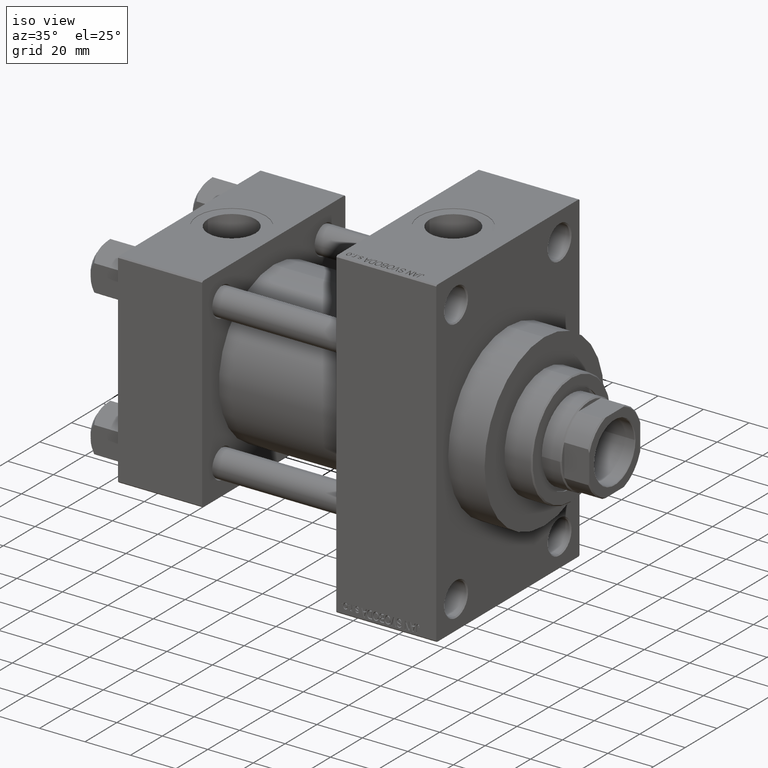
[diagram: clean part render]
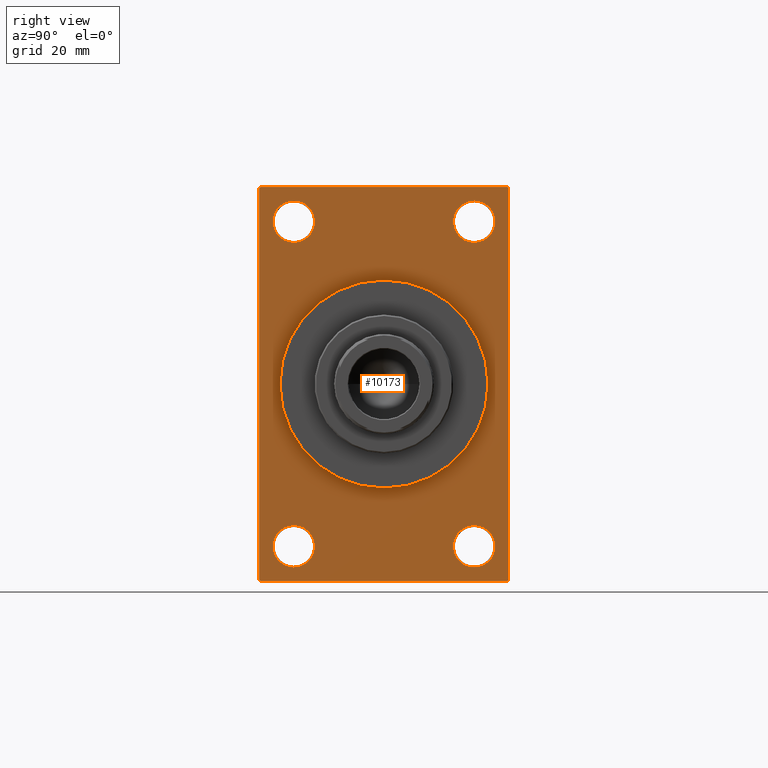
[diagram: tour spotlight — one face highlighted and labeled with its STEP entity id]
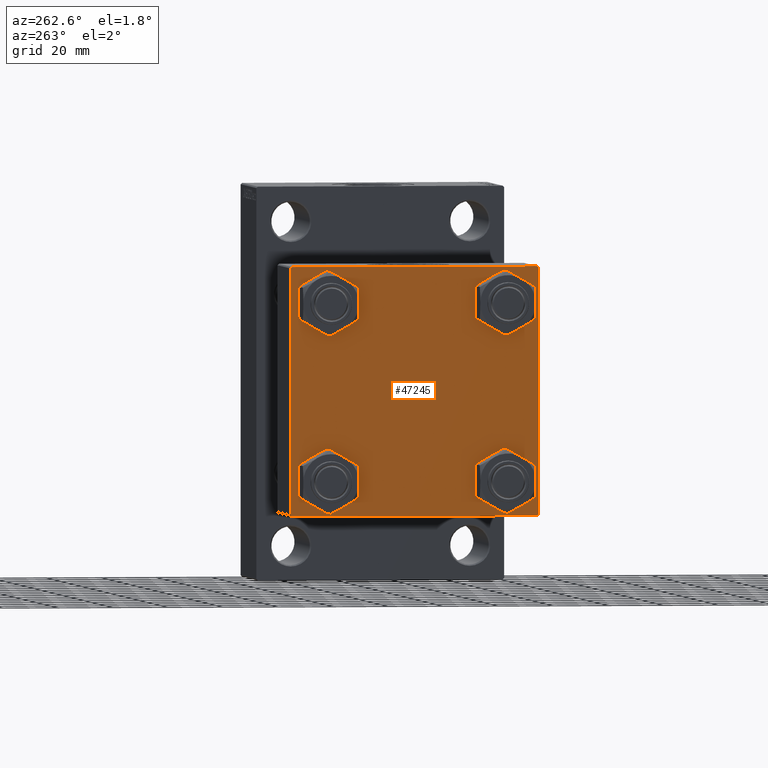
[diagram: tour spotlight — one face highlighted and labeled with its STEP entity id]
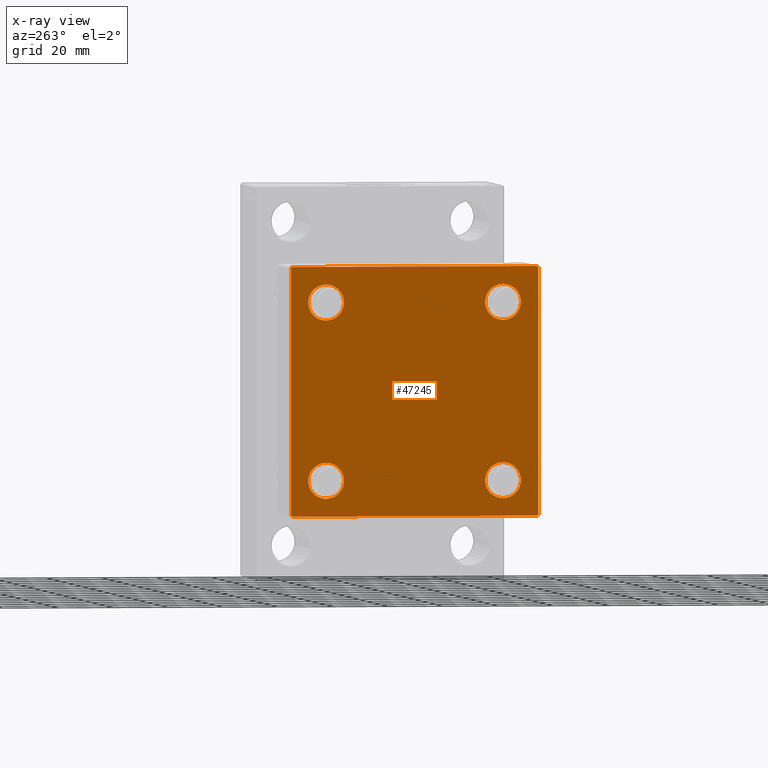
[diagram: x-ray of the same camera — body ghosted, this tour face saturated]
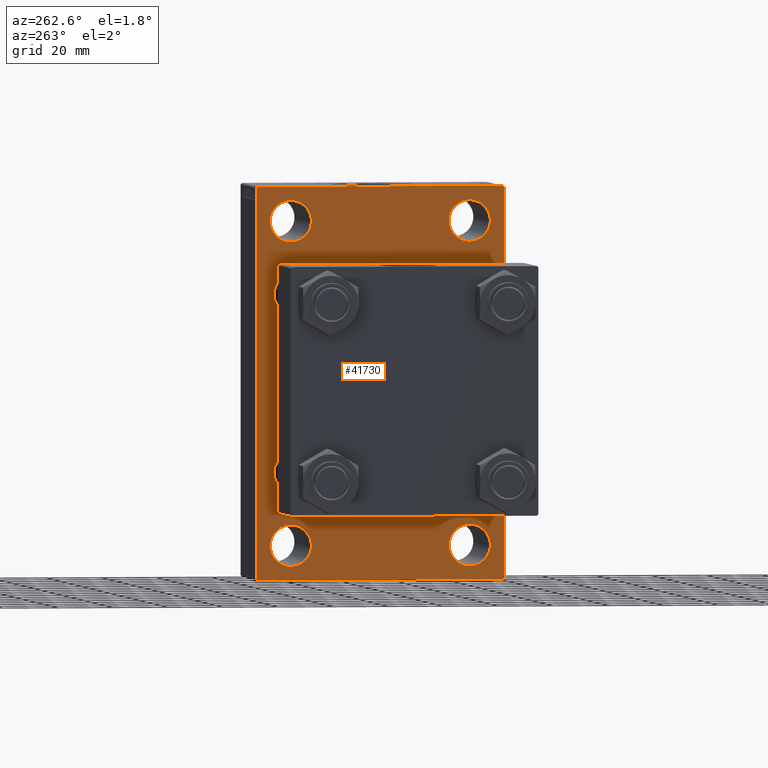
[diagram: tour spotlight — one face highlighted and labeled with its STEP entity id]
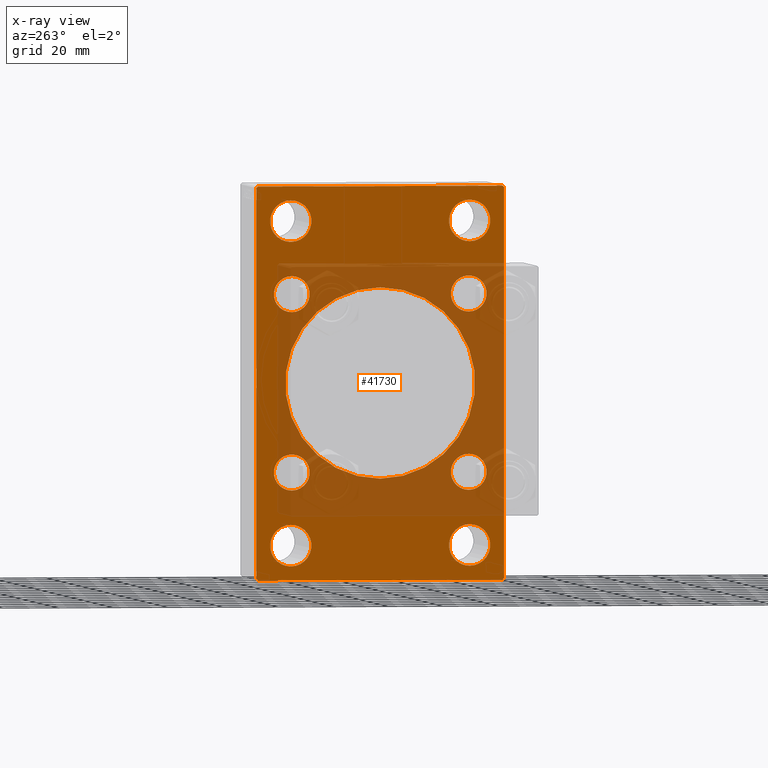
[diagram: x-ray of the same camera — body ghosted, this tour face saturated]
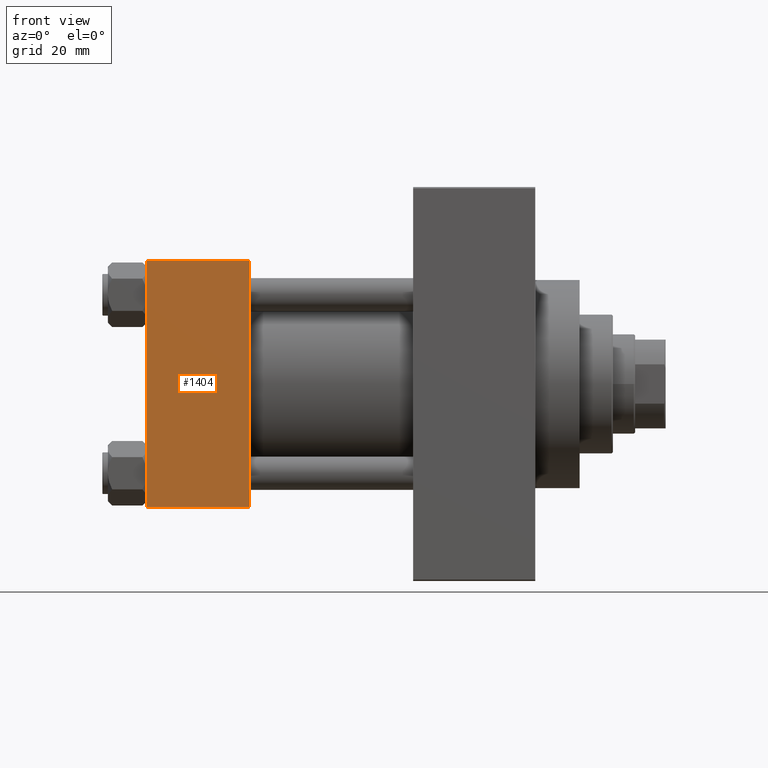
[diagram: tour spotlight — one face highlighted and labeled with its STEP entity id]
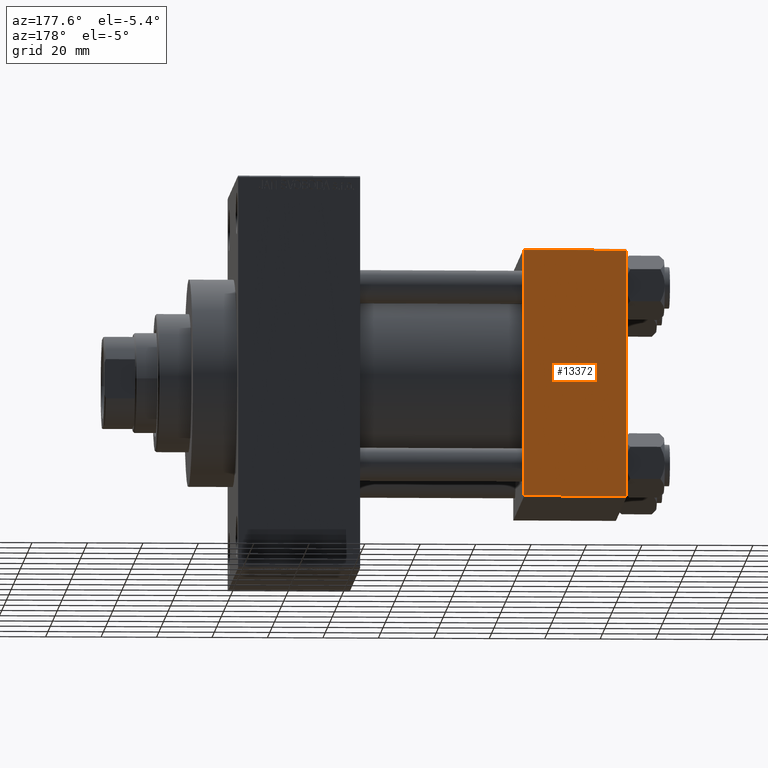
[diagram: tour spotlight — one face highlighted and labeled with its STEP entity id]
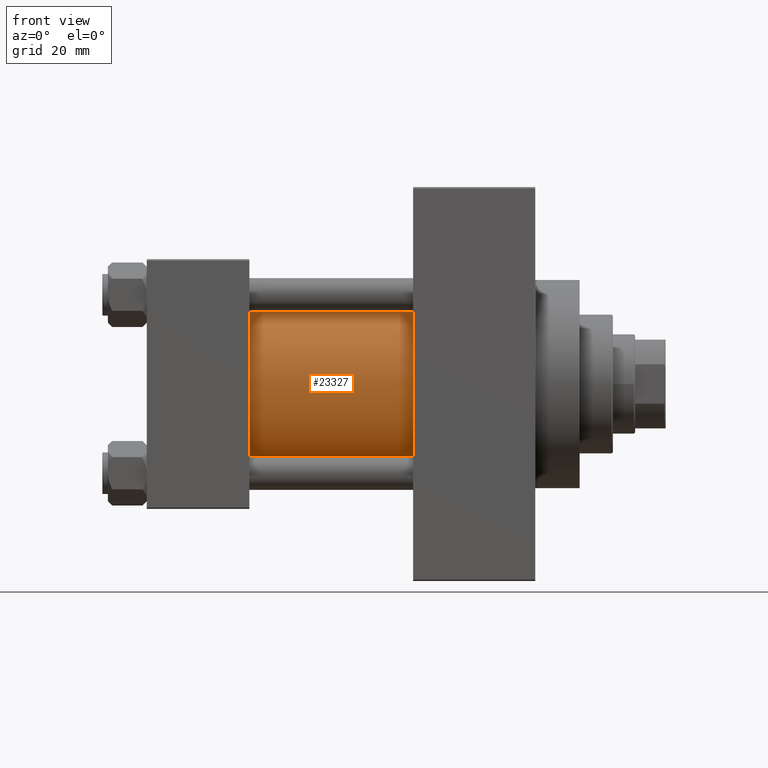
[diagram: tour spotlight — one face highlighted and labeled with its STEP entity id]
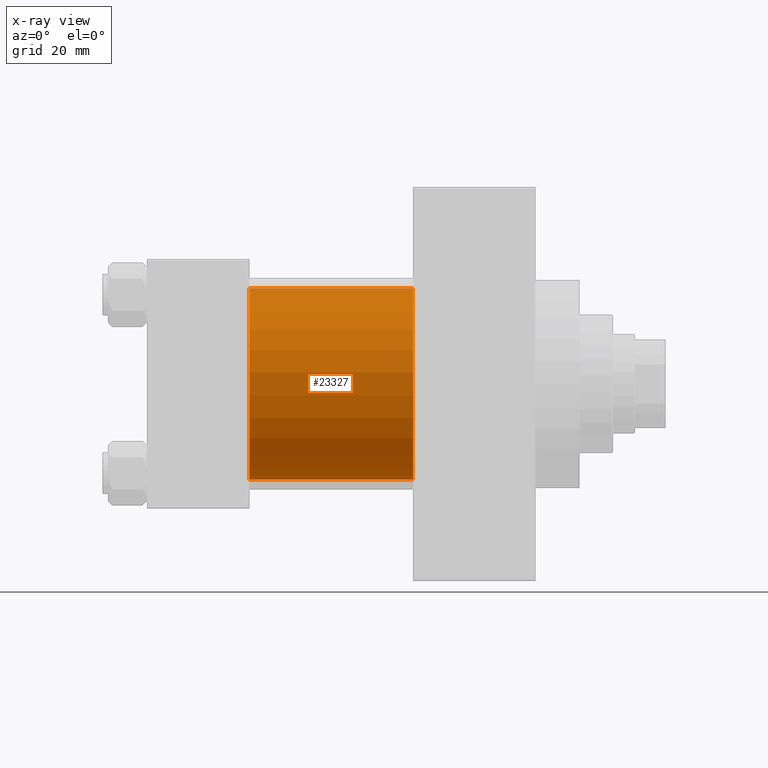
[diagram: x-ray of the same camera — body ghosted, this tour face saturated]
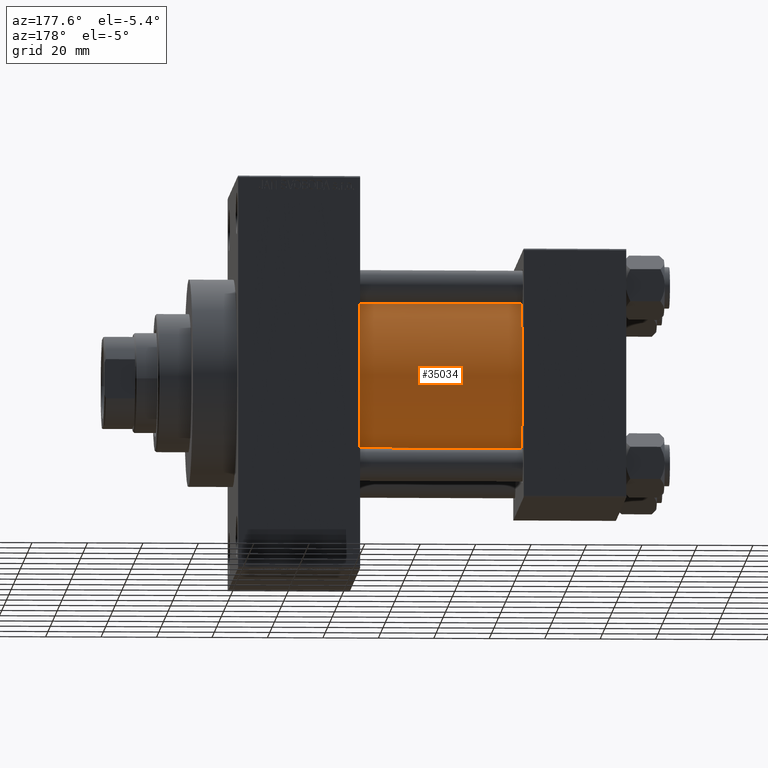
[diagram: tour spotlight — one face highlighted and labeled with its STEP entity id]
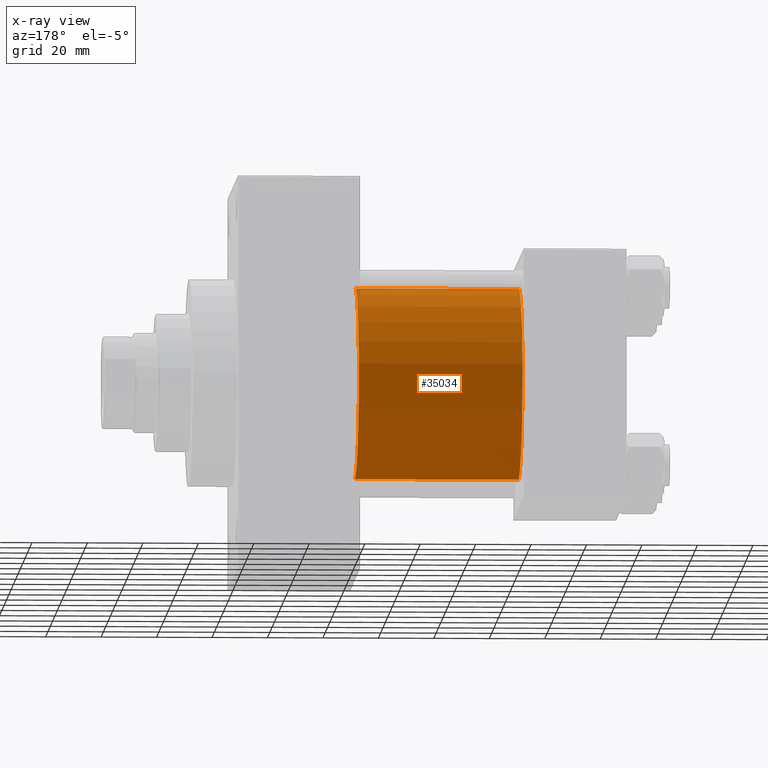
[diagram: x-ray of the same camera — body ghosted, this tour face saturated]
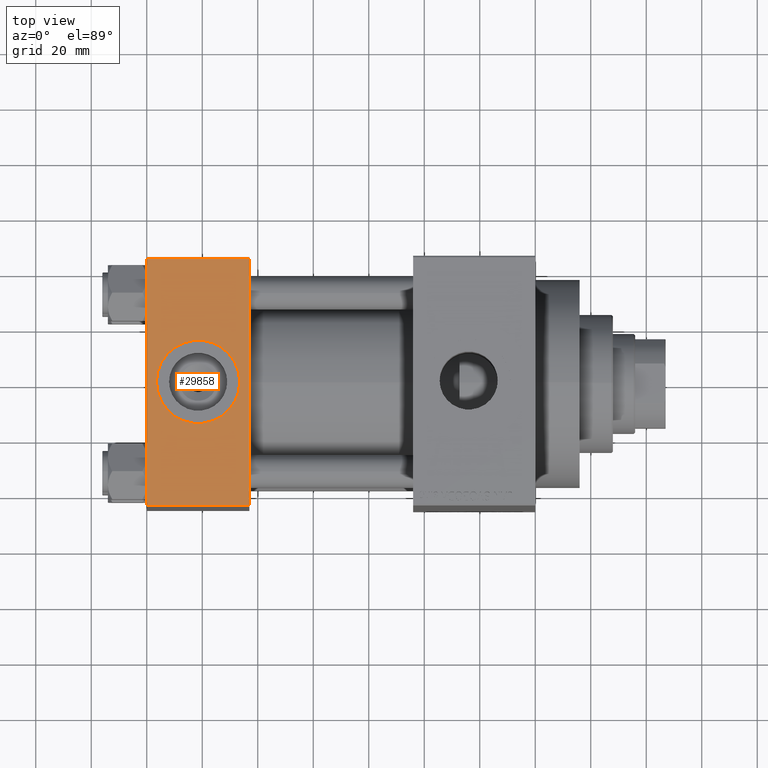
[diagram: tour spotlight — one face highlighted and labeled with its STEP entity id]
A machine part: a face-by-face anatomy tour. The part has 1103 B-rep faces; the first image is the clean iso view, then the 8 largest visible faces are spotlighted one at a time (largest first), each with its STEP entity span.

Face 1 — right view, entity #10173. In plain terms, the highlighted planar face has unit normal (-1, 0, 0).
Definition (entity closure, byte-faithful):
#251 = EDGE_CURVE ( 'NONE', #8689, #45651, #12569, .T. ) ;
#436 = DIRECTION ( 'NONE',  ( -1.000000000000000000, -0.000000000000000000, -0.000000000000000000 ) ) ;
#727 = ORIENTED_EDGE ( 'NONE', *, *, #6602, .T. ) ;
#872 = PLANE ( 'NONE',  #23813 ) ;
#1508 = DIRECTION ( 'NONE',  ( 0.000000000000000000, -1.000000000000000000, 0.000000000000000000 ) ) ;
#1882 = VERTEX_POINT ( 'NONE', #21876 ) ;
#2403 = AXIS2_PLACEMENT_3D ( 'NONE', #28092, #13976, #39275 ) ;
#2563 = VERTEX_POINT ( 'NONE', #7378 ) ;
#2935 = DIRECTION ( 'NONE',  ( -1.000000000000000000, -0.000000000000000000, -0.000000000000000000 ) ) ;
#3158 = CARTESIAN_POINT ( 'NONE',  ( 140.0000000000000000, 32.49999999999998579, 58.50000000000000711 ) ) ;
#3684 = CARTESIAN_POINT ( 'NONE',  ( 140.0000000000000000, 32.49999999999998579, 58.50000000000000711 ) ) ;
#3972 = FACE_BOUND ( 'NONE', #11561, .T. ) ;
#4462 = FACE_BOUND ( 'NONE', #14310, .T. ) ;
#5054 = ORIENTED_EDGE ( 'NONE', *, *, #30594, .T. ) ;
#5171 = ORIENTED_EDGE ( 'NONE', *, *, #33013, .T. ) ;
#5255 = ORIENTED_EDGE ( 'NONE', *, *, #38897, .F. ) ;
#5440 = CARTESIAN_POINT ( 'NONE',  ( 140.0000000000000000, 45.00000000000000000, 71.00000000000000000 ) ) ;
#5640 = VERTEX_POINT ( 'NONE', #22009 ) ;
#6373 = AXIS2_PLACEMENT_3D ( 'NONE', #36127, #25382, #46427 ) ;
#6579 = CARTESIAN_POINT ( 'NONE',  ( 140.0000000000000000, 32.49999999999998579, 66.00000000000002842 ) ) ;
#6602 = EDGE_CURVE ( 'NONE', #18407, #26192, #23437, .T. ) ;
#6608 = AXIS2_PLACEMENT_3D ( 'NONE', #20646, #30920, #23758 ) ;
#7024 = ORIENTED_EDGE ( 'NONE', *, *, #27170, .F. ) ;
#7321 = FACE_OUTER_BOUND ( 'NONE', #28435, .T. ) ;
#7378 = CARTESIAN_POINT ( 'NONE',  ( 140.0000000000000000, 4.592425496802575156E-15, -37.50000000000000711 ) ) ;
#8126 = DIRECTION ( 'NONE',  ( 1.000000000000000000, 0.000000000000000000, 0.000000000000000000 ) ) ;
#8262 = CIRCLE ( 'NONE', #35720, 7.500000000000020428 ) ;
#8265 = CARTESIAN_POINT ( 'NONE',  ( 140.0000000000000000, -32.50000000000001421, -58.49999999999998579 ) ) ;
#8689 = VERTEX_POINT ( 'NONE', #6579 ) ;
#8947 = CIRCLE ( 'NONE', #36356, 37.50000000000000711 ) ;
#9950 = CARTESIAN_POINT ( 'NONE',  ( 140.0000000000000000, -32.50000000000001421, 66.00000000000004263 ) ) ;
#9995 = DIRECTION ( 'NONE',  ( -0.000000000000000000, 0.7071067811865474617, 0.7071067811865474617 ) ) ;
#10173 = ADVANCED_FACE ( 'NONE', ( #22593, #3972, #4462, #18526, #22352, #7321 ), #872, .F. ) ;
#10529 = EDGE_LOOP ( 'NONE', ( #24256, #33597 ) ) ;
#11060 = EDGE_CURVE ( 'NONE', #26192, #18407, #13074, .T. ) ;
#11084 = LINE ( 'NONE', #22303, #41728 ) ;
#11219 = AXIS2_PLACEMENT_3D ( 'NONE', #44049, #25192, #39747 ) ;
#11561 = EDGE_LOOP ( 'NONE', ( #21148, #34749 ) ) ;
#11641 = CARTESIAN_POINT ( 'NONE',  ( 140.0000000000000000, -32.50000000000001421, -66.00000000000000000 ) ) ;
#12569 = CIRCLE ( 'NONE', #42292, 7.500000000000020428 ) ;
#12638 = VERTEX_POINT ( 'NONE', #24618 ) ;
#12758 = VECTOR ( 'NONE', #16683, 1000.000000000000114 ) ;
#12913 = CARTESIAN_POINT ( 'NONE',  ( 140.0000000000000000, 45.00000000000000000, -70.49999999999997158 ) ) ;
#13074 = CIRCLE ( 'NONE', #2403, 7.500000000000034639 ) ;
#13229 = EDGE_LOOP ( 'NONE', ( #17764, #38046 ) ) ;
#13976 = DIRECTION ( 'NONE',  ( -1.000000000000000000, -0.000000000000000000, -0.000000000000000000 ) ) ;
#14057 = VECTOR ( 'NONE', #45790, 1000.000000000000000 ) ;
#14160 = EDGE_CURVE ( 'NONE', #45350, #23076, #23083, .T. ) ;
#14310 = EDGE_LOOP ( 'NONE', ( #33269, #727 ) ) ;
#14385 = ORIENTED_EDGE ( 'NONE', *, *, #33509, .F. ) ;
#15220 = VECTOR ( 'NONE', #1508, 1000.000000000000000 ) ;
#15226 = CARTESIAN_POINT ( 'NONE',  ( 140.0000000000000000, 44.49999999999997158, -71.00000000000000000 ) ) ;
#15640 = CARTESIAN_POINT ( 'NONE',  ( 140.0000000000000000, 32.49999999999998579, 50.99999999999999289 ) ) ;
#15738 = VERTEX_POINT ( 'NONE', #34604 ) ;
#15746 = ORIENTED_EDGE ( 'NONE', *, *, #41954, .T. ) ;
#16302 = EDGE_CURVE ( 'NONE', #15738, #27663, #20091, .T. ) ;
#16683 = DIRECTION ( 'NONE',  ( -0.000000000000000000, -0.7071067811865474617, -0.7071067811865474617 ) ) ;
#17135 = LINE ( 'NONE', #39088, #32665 ) ;
#17558 = VERTEX_POINT ( 'NONE', #12913 ) ;
#17764 = ORIENTED_EDGE ( 'NONE', *, *, #16302, .T. ) ;
#18029 = LINE ( 'NONE', #33047, #31867 ) ;
#18407 = VERTEX_POINT ( 'NONE', #20407 ) ;
#18526 = FACE_BOUND ( 'NONE', #10529, .T. ) ;
#19652 = LINE ( 'NONE', #34202, #15220 ) ;
#20090 = DIRECTION ( 'NONE',  ( 0.000000000000000000, 0.000000000000000000, -1.000000000000000000 ) ) ;
#20091 = CIRCLE ( 'NONE', #6373, 7.500000000000027534 ) ;
#20407 = CARTESIAN_POINT ( 'NONE',  ( 140.0000000000000000, 32.49999999999998579, -50.99999999999995026 ) ) ;
#20646 = CARTESIAN_POINT ( 'NONE',  ( 140.0000000000000000, -32.50000000000001421, 58.50000000000001421 ) ) ;
#21148 = ORIENTED_EDGE ( 'NONE', *, *, #14160, .T. ) ;
#21198 = CARTESIAN_POINT ( 'NONE',  ( 140.0000000000000000, -45.00000000000000000, 70.49999999999997158 ) ) ;
#21876 = CARTESIAN_POINT ( 'NONE',  ( 140.0000000000000000, 45.00000000000000000, 70.50000000000001421 ) ) ;
#22009 = CARTESIAN_POINT ( 'NONE',  ( 140.0000000000000000, -45.00000000000000000, 70.49999999999997158 ) ) ;
#22303 = CARTESIAN_POINT ( 'NONE',  ( 140.0000000000000000, 45.00000000000000000, 71.00000000000000000 ) ) ;
#22331 = DIRECTION ( 'NONE',  ( 0.000000000000000000, 0.000000000000000000, 1.000000000000000000 ) ) ;
#22352 = FACE_BOUND ( 'NONE', #32868, .T. ) ;
#22564 = CIRCLE ( 'NONE', #41663, 37.50000000000000711 ) ;
#22593 = FACE_BOUND ( 'NONE', #13229, .T. ) ;
#22601 = VERTEX_POINT ( 'NONE', #34824 ) ;
#22681 = CARTESIAN_POINT ( 'NONE',  ( 140.0000000000000000, 32.49999999999998579, -66.00000000000000000 ) ) ;
#22820 = CARTESIAN_POINT ( 'NONE',  ( 140.0000000000000000, 44.50000000000002842, 71.00000000000000000 ) ) ;
#22918 = ORIENTED_EDGE ( 'NONE', *, *, #41123, .T. ) ;
#23076 = VERTEX_POINT ( 'NONE', #24957 ) ;
#23083 = CIRCLE ( 'NONE', #29173, 7.500000000000034639 ) ;
#23103 = CARTESIAN_POINT ( 'NONE',  ( 140.0000000000000000, -45.00000000000000000, 71.00000000000000000 ) ) ;
#23437 = CIRCLE ( 'NONE', #11219, 7.500000000000034639 ) ;
#23758 = DIRECTION ( 'NONE',  ( 0.000000000000000000, 0.000000000000000000, 1.000000000000000000 ) ) ;
#23813 = AXIS2_PLACEMENT_3D ( 'NONE', #33085, #25700, #40267 ) ;
#24256 = ORIENTED_EDGE ( 'NONE', *, *, #35271, .T. ) ;
#24363 = CIRCLE ( 'NONE', #33527, 7.500000000000034639 ) ;
#24618 = CARTESIAN_POINT ( 'NONE',  ( 140.0000000000000000, -44.50000000000000000, -71.00000000000000000 ) ) ;
#24957 = CARTESIAN_POINT ( 'NONE',  ( 140.0000000000000000, -32.50000000000001421, -50.99999999999995026 ) ) ;
#25192 = DIRECTION ( 'NONE',  ( -1.000000000000000000, -0.000000000000000000, -0.000000000000000000 ) ) ;
#25341 = DIRECTION ( 'NONE',  ( 0.000000000000000000, 0.000000000000000000, 1.000000000000000000 ) ) ;
#25382 = DIRECTION ( 'NONE',  ( -1.000000000000000000, -0.000000000000000000, -0.000000000000000000 ) ) ;
#25498 = CARTESIAN_POINT ( 'NONE',  ( 140.0000000000000000, -32.50000000000001421, -58.49999999999998579 ) ) ;
#25651 = DIRECTION ( 'NONE',  ( 0.000000000000000000, 0.000000000000000000, -1.000000000000000000 ) ) ;
#25700 = DIRECTION ( 'NONE',  ( -1.000000000000000000, 0.000000000000000000, -0.000000000000000000 ) ) ;
#26192 = VERTEX_POINT ( 'NONE', #22681 ) ;
#26643 = DIRECTION ( 'NONE',  ( -1.000000000000000000, -0.000000000000000000, -0.000000000000000000 ) ) ;
#26698 = LINE ( 'NONE', #23103, #14057 ) ;
#27170 = EDGE_CURVE ( 'NONE', #2563, #22601, #22564, .T. ) ;
#27215 = ORIENTED_EDGE ( 'NONE', *, *, #37167, .T. ) ;
#27249 = ORIENTED_EDGE ( 'NONE', *, *, #29035, .F. ) ;
#27663 = VERTEX_POINT ( 'NONE', #9950 ) ;
#28062 = CARTESIAN_POINT ( 'NONE',  ( 140.0000000000000000, -44.49999999999994316, 71.00000000000000000 ) ) ;
#28092 = CARTESIAN_POINT ( 'NONE',  ( 140.0000000000000000, 32.49999999999998579, -58.49999999999998579 ) ) ;
#28158 = LINE ( 'NONE', #42017, #41806 ) ;
#28435 = EDGE_LOOP ( 'NONE', ( #15746, #27215, #5255, #5054, #14385, #47083, #22918, #5171 ) ) ;
#28762 = DIRECTION ( 'NONE',  ( 0.000000000000000000, 0.000000000000000000, 1.000000000000000000 ) ) ;
#29035 = EDGE_CURVE ( 'NONE', #22601, #2563, #8947, .T. ) ;
#29173 = AXIS2_PLACEMENT_3D ( 'NONE', #25498, #436, #36481 ) ;
#30138 = CARTESIAN_POINT ( 'NONE',  ( 140.0000000000000000, 0.000000000000000000, 0.000000000000000000 ) ) ;
#30594 = EDGE_CURVE ( 'NONE', #46161, #17558, #28158, .T. ) ;
#30920 = DIRECTION ( 'NONE',  ( -1.000000000000000000, -0.000000000000000000, -0.000000000000000000 ) ) ;
#30982 = LINE ( 'NONE', #5440, #43779 ) ;
#31847 = EDGE_CURVE ( 'NONE', #27663, #15738, #38646, .T. ) ;
#31867 = VECTOR ( 'NONE', #39982, 1000.000000000000114 ) ;
#32665 = VECTOR ( 'NONE', #39794, 1000.000000000000114 ) ;
#32868 = EDGE_LOOP ( 'NONE', ( #27249, #7024 ) ) ;
#33013 = EDGE_CURVE ( 'NONE', #37395, #5640, #46271, .T. ) ;
#33047 = CARTESIAN_POINT ( 'NONE',  ( 140.0000000000000000, 44.50000000000002842, 71.00000000000000000 ) ) ;
#33085 = CARTESIAN_POINT ( 'NONE',  ( 140.0000000000000000, 0.000000000000000000, 0.000000000000000000 ) ) ;
#33269 = ORIENTED_EDGE ( 'NONE', *, *, #11060, .T. ) ;
#33509 = EDGE_CURVE ( 'NONE', #1882, #17558, #11084, .T. ) ;
#33527 = AXIS2_PLACEMENT_3D ( 'NONE', #8265, #26643, #22331 ) ;
#33597 = ORIENTED_EDGE ( 'NONE', *, *, #251, .T. ) ;
#33685 = CARTESIAN_POINT ( 'NONE',  ( 140.0000000000000000, -45.00000000000000000, -70.50000000000001421 ) ) ;
#34202 = CARTESIAN_POINT ( 'NONE',  ( 140.0000000000000000, 45.00000000000000000, -71.00000000000000000 ) ) ;
#34385 = EDGE_CURVE ( 'NONE', #1882, #46450, #18029, .T. ) ;
#34409 = DIRECTION ( 'NONE',  ( 1.000000000000000000, 0.000000000000000000, 0.000000000000000000 ) ) ;
#34551 = DIRECTION ( 'NONE',  ( 0.000000000000000000, -1.000000000000000000, 0.000000000000000000 ) ) ;
#34604 = CARTESIAN_POINT ( 'NONE',  ( 140.0000000000000000, -32.50000000000001421, 50.99999999999999289 ) ) ;
#34749 = ORIENTED_EDGE ( 'NONE', *, *, #38510, .T. ) ;
#34824 = CARTESIAN_POINT ( 'NONE',  ( 140.0000000000000000, 0.000000000000000000, 37.50000000000000711 ) ) ;
#35271 = EDGE_CURVE ( 'NONE', #45651, #8689, #8262, .T. ) ;
#35720 = AXIS2_PLACEMENT_3D ( 'NONE', #3684, #39953, #28762 ) ;
#36127 = CARTESIAN_POINT ( 'NONE',  ( 140.0000000000000000, -32.50000000000001421, 58.50000000000001421 ) ) ;
#36356 = AXIS2_PLACEMENT_3D ( 'NONE', #30138, #34409, #20090 ) ;
#36481 = DIRECTION ( 'NONE',  ( 0.000000000000000000, 0.000000000000000000, 1.000000000000000000 ) ) ;
#36613 = VERTEX_POINT ( 'NONE', #33685 ) ;
#37167 = EDGE_CURVE ( 'NONE', #36613, #12638, #17135, .T. ) ;
#37395 = VERTEX_POINT ( 'NONE', #28062 ) ;
#38046 = ORIENTED_EDGE ( 'NONE', *, *, #31847, .T. ) ;
#38510 = EDGE_CURVE ( 'NONE', #23076, #45350, #24363, .T. ) ;
#38646 = CIRCLE ( 'NONE', #6608, 7.500000000000027534 ) ;
#38897 = EDGE_CURVE ( 'NONE', #46161, #12638, #19652, .T. ) ;
#39088 = CARTESIAN_POINT ( 'NONE',  ( 140.0000000000000000, -44.50000000000002842, -71.00000000000000000 ) ) ;
#39275 = DIRECTION ( 'NONE',  ( 0.000000000000000000, 0.000000000000000000, 1.000000000000000000 ) ) ;
#39747 = DIRECTION ( 'NONE',  ( 0.000000000000000000, 0.000000000000000000, 1.000000000000000000 ) ) ;
#39794 = DIRECTION ( 'NONE',  ( 0.000000000000000000, 0.7071067811865474617, -0.7071067811865474617 ) ) ;
#39953 = DIRECTION ( 'NONE',  ( -1.000000000000000000, -0.000000000000000000, -0.000000000000000000 ) ) ;
#39982 = DIRECTION ( 'NONE',  ( 0.000000000000000000, -0.7071067811865474617, 0.7071067811865474617 ) ) ;
#40267 = DIRECTION ( 'NONE',  ( -0.000000000000000000, 0.000000000000000000, 1.000000000000000000 ) ) ;
#40593 = CARTESIAN_POINT ( 'NONE',  ( 140.0000000000000000, 0.000000000000000000, 0.000000000000000000 ) ) ;
#41123 = EDGE_CURVE ( 'NONE', #46450, #37395, #30982, .T. ) ;
#41663 = AXIS2_PLACEMENT_3D ( 'NONE', #40593, #8126, #44901 ) ;
#41728 = VECTOR ( 'NONE', #25651, 1000.000000000000000 ) ;
#41806 = VECTOR ( 'NONE', #9995, 1000.000000000000114 ) ;
#41954 = EDGE_CURVE ( 'NONE', #5640, #36613, #26698, .T. ) ;
#42017 = CARTESIAN_POINT ( 'NONE',  ( 140.0000000000000000, 45.00000000000000000, -70.49999999999997158 ) ) ;
#42292 = AXIS2_PLACEMENT_3D ( 'NONE', #3158, #2935, #25341 ) ;
#43779 = VECTOR ( 'NONE', #34551, 1000.000000000000000 ) ;
#44049 = CARTESIAN_POINT ( 'NONE',  ( 140.0000000000000000, 32.49999999999998579, -58.49999999999998579 ) ) ;
#44901 = DIRECTION ( 'NONE',  ( 0.000000000000000000, 0.000000000000000000, -1.000000000000000000 ) ) ;
#45350 = VERTEX_POINT ( 'NONE', #11641 ) ;
#45651 = VERTEX_POINT ( 'NONE', #15640 ) ;
#45790 = DIRECTION ( 'NONE',  ( 0.000000000000000000, 0.000000000000000000, -1.000000000000000000 ) ) ;
#46161 = VERTEX_POINT ( 'NONE', #15226 ) ;
#46271 = LINE ( 'NONE', #21198, #12758 ) ;
#46427 = DIRECTION ( 'NONE',  ( 0.000000000000000000, 0.000000000000000000, 1.000000000000000000 ) ) ;
#46450 = VERTEX_POINT ( 'NONE', #22820 ) ;
#47083 = ORIENTED_EDGE ( 'NONE', *, *, #34385, .T. ) ;

Face 2 — auxiliary view, entity #47245. An x-ray twin of the same camera follows (body ghosted, this face saturated) — the face is partly hidden behind the body. In plain terms, the highlighted planar face has unit normal (-1, 0, 0).
Definition (entity closure, byte-faithful):
#1450 = DIRECTION ( 'NONE',  ( -0.000000000000000000, 0.000000000000000000, 1.000000000000000000 ) ) ;
#2092 = VECTOR ( 'NONE', #35647, 1000.000000000000000 ) ;
#2769 = VECTOR ( 'NONE', #37056, 1000.000000000000000 ) ;
#2888 = CIRCLE ( 'NONE', #41788, 6.499999999999977796 ) ;
#3161 = CARTESIAN_POINT ( 'NONE',  ( 0.000000000000000000, 44.50000000000000000, -44.99999999999999289 ) ) ;
#3171 = ORIENTED_EDGE ( 'NONE', *, *, #9122, .T. ) ;
#3280 = CARTESIAN_POINT ( 'NONE',  ( 0.000000000000000000, 32.14999999999999147, -32.14999999999999858 ) ) ;
#3730 = CARTESIAN_POINT ( 'NONE',  ( 0.000000000000000000, -32.14999999999997726, 38.64999999999999147 ) ) ;
#3889 = CARTESIAN_POINT ( 'NONE',  ( 0.000000000000000000, -45.00000000000000000, -44.49999999999997158 ) ) ;
#4438 = VECTOR ( 'NONE', #6912, 999.9999999999998863 ) ;
#5075 = LINE ( 'NONE', #44723, #2769 ) ;
#5132 = CARTESIAN_POINT ( 'NONE',  ( 0.000000000000000000, 44.74999999999999289, -44.74999999999999289 ) ) ;
#5424 = CARTESIAN_POINT ( 'NONE',  ( 0.000000000000000000, 32.14999999999999147, 25.64999999999997726 ) ) ;
#5717 = EDGE_CURVE ( 'NONE', #35969, #31416, #23187, .T. ) ;
#6097 = EDGE_CURVE ( 'NONE', #13751, #23742, #40228, .T. ) ;
#6168 = EDGE_LOOP ( 'NONE', ( #21490, #30914 ) ) ;
#6250 = AXIS2_PLACEMENT_3D ( 'NONE', #26913, #22616, #41472 ) ;
#6912 = DIRECTION ( 'NONE',  ( 0.000000000000000000, 0.7071067811865574537, -0.7071067811865376918 ) ) ;
#7363 = EDGE_LOOP ( 'NONE', ( #11620, #40997 ) ) ;
#7774 = DIRECTION ( 'NONE',  ( 0.000000000000000000, 0.000000000000000000, 1.000000000000000000 ) ) ;
#7896 = EDGE_CURVE ( 'NONE', #23742, #13751, #2888, .T. ) ;
#8354 = CIRCLE ( 'NONE', #17517, 6.499999999999977796 ) ;
#8533 = ORIENTED_EDGE ( 'NONE', *, *, #26835, .T. ) ;
#9033 = VECTOR ( 'NONE', #12701, 1000.000000000000000 ) ;
#9122 = EDGE_CURVE ( 'NONE', #21927, #9645, #12946, .T. ) ;
#9404 = ORIENTED_EDGE ( 'NONE', *, *, #30984, .T. ) ;
#9645 = VERTEX_POINT ( 'NONE', #17147 ) ;
#9795 = LINE ( 'NONE', #14305, #4438 ) ;
#10085 = ORIENTED_EDGE ( 'NONE', *, *, #12158, .T. ) ;
#10193 = LINE ( 'NONE', #39781, #27055 ) ;
#10308 = CARTESIAN_POINT ( 'NONE',  ( 0.000000000000000000, -32.14999999999997726, -25.65000000000002700 ) ) ;
#10444 = CARTESIAN_POINT ( 'NONE',  ( 0.000000000000000000, 32.14999999999999147, 32.14999999999999858 ) ) ;
#10579 = ORIENTED_EDGE ( 'NONE', *, *, #35849, .T. ) ;
#10992 = CARTESIAN_POINT ( 'NONE',  ( 0.000000000000000000, -45.00000000000000000, 44.49999999999998579 ) ) ;
#11382 = DIRECTION ( 'NONE',  ( 1.000000000000000000, -0.000000000000000000, 0.000000000000000000 ) ) ;
#11616 = ORIENTED_EDGE ( 'NONE', *, *, #42918, .T. ) ;
#11620 = ORIENTED_EDGE ( 'NONE', *, *, #46557, .T. ) ;
#12139 = ORIENTED_EDGE ( 'NONE', *, *, #19514, .F. ) ;
#12158 = EDGE_CURVE ( 'NONE', #29158, #34117, #42085, .T. ) ;
#12418 = CARTESIAN_POINT ( 'NONE',  ( 0.000000000000000000, -32.14999999999997726, 32.15000000000000568 ) ) ;
#12701 = DIRECTION ( 'NONE',  ( 0.000000000000000000, -1.000000000000000000, -7.709882115452476934E-17 ) ) ;
#12912 = FACE_OUTER_BOUND ( 'NONE', #29425, .T. ) ;
#12946 = LINE ( 'NONE', #42070, #9033 ) ;
#13457 = CIRCLE ( 'NONE', #34025, 6.500000000000019540 ) ;
#13751 = VERTEX_POINT ( 'NONE', #10308 ) ;
#13861 = CARTESIAN_POINT ( 'NONE',  ( 0.000000000000000000, 32.14999999999999147, -25.64999999999997726 ) ) ;
#13997 = CARTESIAN_POINT ( 'NONE',  ( 0.000000000000000000, 45.00000000000000000, 44.49999999999999289 ) ) ;
#14305 = CARTESIAN_POINT ( 'NONE',  ( 0.000000000000000000, 44.74999999999936762, 44.75000000000061107 ) ) ;
#15138 = ORIENTED_EDGE ( 'NONE', *, *, #5717, .F. ) ;
#15276 = DIRECTION ( 'NONE',  ( 0.000000000000000000, 0.000000000000000000, -1.000000000000000000 ) ) ;
#15507 = CARTESIAN_POINT ( 'NONE',  ( 0.000000000000000000, 45.00000000000000000, -44.49999999999996447 ) ) ;
#15615 = VERTEX_POINT ( 'NONE', #3889 ) ;
#15642 = DIRECTION ( 'NONE',  ( 1.000000000000000000, -0.000000000000000000, 0.000000000000000000 ) ) ;
#15998 = DIRECTION ( 'NONE',  ( 0.000000000000000000, 0.000000000000000000, 1.000000000000000000 ) ) ;
#16480 = FACE_BOUND ( 'NONE', #7363, .T. ) ;
#16900 = ORIENTED_EDGE ( 'NONE', *, *, #33618, .T. ) ;
#17147 = CARTESIAN_POINT ( 'NONE',  ( 0.000000000000000000, -44.49999999999994316, -45.00000000000000000 ) ) ;
#17346 = AXIS2_PLACEMENT_3D ( 'NONE', #10444, #28367, #39086 ) ;
#17517 = AXIS2_PLACEMENT_3D ( 'NONE', #37593, #15642, #19221 ) ;
#18077 = ORIENTED_EDGE ( 'NONE', *, *, #38567, .T. ) ;
#18117 = VECTOR ( 'NONE', #33767, 1000.000000000000114 ) ;
#18277 = DIRECTION ( 'NONE',  ( 1.000000000000000000, -0.000000000000000000, 0.000000000000000000 ) ) ;
#18344 = CARTESIAN_POINT ( 'NONE',  ( 0.000000000000000000, 44.49999999999997158, 45.00000000000000711 ) ) ;
#19221 = DIRECTION ( 'NONE',  ( 0.000000000000000000, 0.000000000000000000, 1.000000000000000000 ) ) ;
#19514 = EDGE_CURVE ( 'NONE', #20253, #15615, #41301, .T. ) ;
#20028 = EDGE_LOOP ( 'NONE', ( #18077, #34586 ) ) ;
#20253 = VERTEX_POINT ( 'NONE', #10992 ) ;
#20851 = CARTESIAN_POINT ( 'NONE',  ( 0.000000000000000000, -44.74999999999873523, -44.75000000000122924 ) ) ;
#21186 = DIRECTION ( 'NONE',  ( -0.000000000000000000, 0.7071067811865474617, 0.7071067811865474617 ) ) ;
#21490 = ORIENTED_EDGE ( 'NONE', *, *, #6097, .T. ) ;
#21927 = VERTEX_POINT ( 'NONE', #3161 ) ;
#22590 = CIRCLE ( 'NONE', #27961, 6.499999999999977796 ) ;
#22616 = DIRECTION ( 'NONE',  ( 1.000000000000000000, -0.000000000000000000, 0.000000000000000000 ) ) ;
#22751 = EDGE_CURVE ( 'NONE', #34117, #29158, #45311, .T. ) ;
#22935 = CARTESIAN_POINT ( 'NONE',  ( 0.000000000000000000, 0.000000000000000000, 0.000000000000000000 ) ) ;
#23162 = DIRECTION ( 'NONE',  ( 1.000000000000000000, -0.000000000000000000, 0.000000000000000000 ) ) ;
#23168 = FACE_BOUND ( 'NONE', #45176, .T. ) ;
#23187 = LINE ( 'NONE', #45644, #31781 ) ;
#23742 = VERTEX_POINT ( 'NONE', #24012 ) ;
#23974 = AXIS2_PLACEMENT_3D ( 'NONE', #3280, #11382, #32168 ) ;
#24012 = CARTESIAN_POINT ( 'NONE',  ( 0.000000000000000000, -32.14999999999997726, -38.64999999999998437 ) ) ;
#25182 = CARTESIAN_POINT ( 'NONE',  ( 0.000000000000000000, -32.14999999999997726, -32.15000000000000568 ) ) ;
#26835 = EDGE_CURVE ( 'NONE', #45593, #45041, #5075, .T. ) ;
#26913 = CARTESIAN_POINT ( 'NONE',  ( 0.000000000000000000, 32.14999999999999147, -32.14999999999999858 ) ) ;
#27055 = VECTOR ( 'NONE', #21186, 1000.000000000000114 ) ;
#27961 = AXIS2_PLACEMENT_3D ( 'NONE', #12418, #23162, #15998 ) ;
#28310 = EDGE_CURVE ( 'NONE', #35339, #46577, #22590, .T. ) ;
#28367 = DIRECTION ( 'NONE',  ( 1.000000000000000000, -0.000000000000000000, 0.000000000000000000 ) ) ;
#29158 = VERTEX_POINT ( 'NONE', #13861 ) ;
#29263 = CARTESIAN_POINT ( 'NONE',  ( 0.000000000000000000, 32.14999999999999147, 32.14999999999999858 ) ) ;
#29375 = CARTESIAN_POINT ( 'NONE',  ( 0.000000000000000000, -45.00000000000000000, 44.99999999999998579 ) ) ;
#29425 = EDGE_LOOP ( 'NONE', ( #8533, #9404, #3171, #16900, #12139, #11616, #15138, #10579 ) ) ;
#29623 = CARTESIAN_POINT ( 'NONE',  ( 0.000000000000000000, 32.14999999999999147, 38.65000000000001990 ) ) ;
#30577 = FACE_BOUND ( 'NONE', #6168, .T. ) ;
#30914 = ORIENTED_EDGE ( 'NONE', *, *, #7896, .T. ) ;
#30984 = EDGE_CURVE ( 'NONE', #45041, #21927, #41414, .T. ) ;
#31416 = VERTEX_POINT ( 'NONE', #37640 ) ;
#31639 = DIRECTION ( 'NONE',  ( 0.000000000000000000, 0.000000000000000000, 1.000000000000000000 ) ) ;
#31781 = VECTOR ( 'NONE', #41575, 1000.000000000000000 ) ;
#32168 = DIRECTION ( 'NONE',  ( 0.000000000000000000, 0.000000000000000000, 1.000000000000000000 ) ) ;
#33007 = EDGE_CURVE ( 'NONE', #34180, #44893, #40969, .T. ) ;
#33618 = EDGE_CURVE ( 'NONE', #9645, #15615, #38985, .T. ) ;
#33767 = DIRECTION ( 'NONE',  ( -0.000000000000000000, -0.7071067811865474617, -0.7071067811865474617 ) ) ;
#34025 = AXIS2_PLACEMENT_3D ( 'NONE', #29263, #18277, #7774 ) ;
#34117 = VERTEX_POINT ( 'NONE', #46799 ) ;
#34180 = VERTEX_POINT ( 'NONE', #5424 ) ;
#34384 = FACE_BOUND ( 'NONE', #20028, .T. ) ;
#34586 = ORIENTED_EDGE ( 'NONE', *, *, #28310, .T. ) ;
#34620 = PLANE ( 'NONE',  #42468 ) ;
#34828 = DIRECTION ( 'NONE',  ( 0.000000000000000000, 0.000000000000000000, 1.000000000000000000 ) ) ;
#34890 = AXIS2_PLACEMENT_3D ( 'NONE', #42004, #37930, #34828 ) ;
#35339 = VERTEX_POINT ( 'NONE', #35689 ) ;
#35647 = DIRECTION ( 'NONE',  ( 0.000000000000000000, -0.7071067811865672237, 0.7071067811865279218 ) ) ;
#35689 = CARTESIAN_POINT ( 'NONE',  ( 0.000000000000000000, -32.14999999999997726, 25.65000000000002700 ) ) ;
#35849 = EDGE_CURVE ( 'NONE', #35969, #45593, #9795, .T. ) ;
#35969 = VERTEX_POINT ( 'NONE', #18344 ) ;
#37056 = DIRECTION ( 'NONE',  ( 0.000000000000000000, 0.000000000000000000, -1.000000000000000000 ) ) ;
#37593 = CARTESIAN_POINT ( 'NONE',  ( 0.000000000000000000, -32.14999999999997726, 32.15000000000000568 ) ) ;
#37640 = CARTESIAN_POINT ( 'NONE',  ( 0.000000000000000000, -44.49999999999997158, 44.99999999999998579 ) ) ;
#37930 = DIRECTION ( 'NONE',  ( 1.000000000000000000, -0.000000000000000000, 0.000000000000000000 ) ) ;
#38567 = EDGE_CURVE ( 'NONE', #46577, #35339, #8354, .T. ) ;
#38707 = ORIENTED_EDGE ( 'NONE', *, *, #22751, .T. ) ;
#38985 = LINE ( 'NONE', #20851, #2092 ) ;
#39086 = DIRECTION ( 'NONE',  ( 0.000000000000000000, 0.000000000000000000, 1.000000000000000000 ) ) ;
#39736 = DIRECTION ( 'NONE',  ( 1.000000000000000000, -0.000000000000000000, 0.000000000000000000 ) ) ;
#39781 = CARTESIAN_POINT ( 'NONE',  ( -0.000000000000000000, -44.74999999999999289, 44.74999999999999289 ) ) ;
#40228 = CIRCLE ( 'NONE', #34890, 6.499999999999977796 ) ;
#40969 = CIRCLE ( 'NONE', #17346, 6.500000000000019540 ) ;
#40997 = ORIENTED_EDGE ( 'NONE', *, *, #33007, .T. ) ;
#41301 = LINE ( 'NONE', #29375, #46722 ) ;
#41315 = DIRECTION ( 'NONE',  ( -1.000000000000000000, 0.000000000000000000, -0.000000000000000000 ) ) ;
#41414 = LINE ( 'NONE', #5132, #18117 ) ;
#41472 = DIRECTION ( 'NONE',  ( 0.000000000000000000, 0.000000000000000000, 1.000000000000000000 ) ) ;
#41575 = DIRECTION ( 'NONE',  ( 0.000000000000000000, -1.000000000000000000, -2.312964634635742957E-16 ) ) ;
#41788 = AXIS2_PLACEMENT_3D ( 'NONE', #25182, #39736, #31639 ) ;
#42004 = CARTESIAN_POINT ( 'NONE',  ( 0.000000000000000000, -32.14999999999997726, -32.15000000000000568 ) ) ;
#42070 = CARTESIAN_POINT ( 'NONE',  ( 0.000000000000000000, 45.00000000000000000, -44.99999999999999289 ) ) ;
#42085 = CIRCLE ( 'NONE', #6250, 6.500000000000019540 ) ;
#42468 = AXIS2_PLACEMENT_3D ( 'NONE', #22935, #41315, #1450 ) ;
#42918 = EDGE_CURVE ( 'NONE', #20253, #31416, #10193, .T. ) ;
#44723 = CARTESIAN_POINT ( 'NONE',  ( 0.000000000000000000, 45.00000000000000000, 45.00000000000000711 ) ) ;
#44893 = VERTEX_POINT ( 'NONE', #29623 ) ;
#45041 = VERTEX_POINT ( 'NONE', #15507 ) ;
#45176 = EDGE_LOOP ( 'NONE', ( #10085, #38707 ) ) ;
#45311 = CIRCLE ( 'NONE', #23974, 6.500000000000019540 ) ;
#45593 = VERTEX_POINT ( 'NONE', #13997 ) ;
#45644 = CARTESIAN_POINT ( 'NONE',  ( 0.000000000000000000, 45.00000000000000000, 45.00000000000000711 ) ) ;
#46557 = EDGE_CURVE ( 'NONE', #44893, #34180, #13457, .T. ) ;
#46577 = VERTEX_POINT ( 'NONE', #3730 ) ;
#46722 = VECTOR ( 'NONE', #15276, 1000.000000000000000 ) ;
#46799 = CARTESIAN_POINT ( 'NONE',  ( 0.000000000000000000, 32.14999999999999147, -38.65000000000001990 ) ) ;
#47245 = ADVANCED_FACE ( 'NONE', ( #34384, #30577, #23168, #16480, #12912 ), #34620, .T. ) ;

Face 3 — auxiliary view, entity #41730. An x-ray twin of the same camera follows (body ghosted, this face saturated) — the face is partly hidden behind the body. In plain terms, the highlighted planar face has unit normal (-1, 0, 0).
Definition (entity closure, byte-faithful):
#635 = EDGE_CURVE ( 'NONE', #9524, #2823, #29355, .T. ) ;
#774 = DIRECTION ( 'NONE',  ( 0.000000000000000000, 0.000000000000000000, 1.000000000000000000 ) ) ;
#996 = DIRECTION ( 'NONE',  ( 1.000000000000000000, 0.000000000000000000, 0.000000000000000000 ) ) ;
#1028 = CIRCLE ( 'NONE', #3310, 7.499999999999965361 ) ;
#1728 = EDGE_CURVE ( 'NONE', #16140, #39288, #43878, .T. ) ;
#1919 = FACE_BOUND ( 'NONE', #29291, .T. ) ;
#1991 = CIRCLE ( 'NONE', #27176, 34.50000000000000000 ) ;
#2029 = VERTEX_POINT ( 'NONE', #4917 ) ;
#2040 = DIRECTION ( 'NONE',  ( 0.000000000000000000, -0.7071067811865474617, 0.7071067811865474617 ) ) ;
#2144 = DIRECTION ( 'NONE',  ( 1.000000000000000000, 0.000000000000000000, 0.000000000000000000 ) ) ;
#2298 = VERTEX_POINT ( 'NONE', #19129 ) ;
#2373 = DIRECTION ( 'NONE',  ( 0.000000000000000000, 0.000000000000000000, 1.000000000000000000 ) ) ;
#2420 = DIRECTION ( 'NONE',  ( 1.000000000000000000, 0.000000000000000000, 0.000000000000000000 ) ) ;
#2428 = CARTESIAN_POINT ( 'NONE',  ( 96.00000000000000000, 45.00000000000000000, -70.49999999999997158 ) ) ;
#2652 = AXIS2_PLACEMENT_3D ( 'NONE', #8020, #33316, #32614 ) ;
#2703 = AXIS2_PLACEMENT_3D ( 'NONE', #26124, #43799, #11325 ) ;
#2823 = VERTEX_POINT ( 'NONE', #16194 ) ;
#2841 = VERTEX_POINT ( 'NONE', #43163 ) ;
#3102 = DIRECTION ( 'NONE',  ( 0.000000000000000000, 0.000000000000000000, 1.000000000000000000 ) ) ;
#3310 = AXIS2_PLACEMENT_3D ( 'NONE', #13186, #20118, #12963 ) ;
#3359 = ORIENTED_EDGE ( 'NONE', *, *, #33064, .T. ) ;
#3536 = DIRECTION ( 'NONE',  ( -0.000000000000000000, -0.7071067811865474617, -0.7071067811865474617 ) ) ;
#3551 = PLANE ( 'NONE',  #24728 ) ;
#3746 = CARTESIAN_POINT ( 'NONE',  ( 96.00000000000000000, 45.00000000000000000, -71.00000000000000000 ) ) ;
#3766 = DIRECTION ( 'NONE',  ( 0.000000000000000000, 0.000000000000000000, -1.000000000000000000 ) ) ;
#3872 = CARTESIAN_POINT ( 'NONE',  ( 96.00000000000000000, -32.14999999999997726, -32.15000000000000568 ) ) ;
#3925 = VERTEX_POINT ( 'NONE', #21384 ) ;
#4405 = CARTESIAN_POINT ( 'NONE',  ( 96.00000000000000000, -45.00000000000000000, 70.49999999999997158 ) ) ;
#4446 = DIRECTION ( 'NONE',  ( 1.000000000000000000, 0.000000000000000000, 0.000000000000000000 ) ) ;
#4472 = VERTEX_POINT ( 'NONE', #37755 ) ;
#4518 = DIRECTION ( 'NONE',  ( 0.000000000000000000, 0.000000000000000000, 1.000000000000000000 ) ) ;
#4917 = CARTESIAN_POINT ( 'NONE',  ( 96.00000000000000000, 32.14999999999999147, 38.65000000000001279 ) ) ;
#4998 = AXIS2_PLACEMENT_3D ( 'NONE', #11594, #4446, #22335 ) ;
#5289 = EDGE_CURVE ( 'NONE', #43968, #4472, #8168, .T. ) ;
#5480 = CARTESIAN_POINT ( 'NONE',  ( 96.00000000000000000, -32.14999999999997726, -25.64999999999999858 ) ) ;
#5500 = FACE_BOUND ( 'NONE', #8443, .T. ) ;
#5580 = DIRECTION ( 'NONE',  ( 1.000000000000000000, 0.000000000000000000, 0.000000000000000000 ) ) ;
#6053 = CARTESIAN_POINT ( 'NONE',  ( 96.00000000000000000, -32.50000000000001421, -58.49999999999998579 ) ) ;
#6331 = ORIENTED_EDGE ( 'NONE', *, *, #10228, .T. ) ;
#6635 = VERTEX_POINT ( 'NONE', #35937 ) ;
#7019 = ORIENTED_EDGE ( 'NONE', *, *, #17775, .T. ) ;
#7062 = AXIS2_PLACEMENT_3D ( 'NONE', #25979, #40056, #7601 ) ;
#7292 = CIRCLE ( 'NONE', #25588, 7.499999999999965361 ) ;
#7318 = CIRCLE ( 'NONE', #31728, 6.500000000000005329 ) ;
#7559 = CARTESIAN_POINT ( 'NONE',  ( 96.00000000000000000, 32.49999999999998579, 65.99999999999998579 ) ) ;
#7601 = DIRECTION ( 'NONE',  ( 0.000000000000000000, 0.000000000000000000, 1.000000000000000000 ) ) ;
#7723 = VERTEX_POINT ( 'NONE', #7559 ) ;
#7868 = ORIENTED_EDGE ( 'NONE', *, *, #10104, .T. ) ;
#8020 = CARTESIAN_POINT ( 'NONE',  ( 96.00000000000000000, 32.14999999999999147, 32.14999999999999858 ) ) ;
#8168 = CIRCLE ( 'NONE', #43251, 7.499999999999965361 ) ;
#8205 = AXIS2_PLACEMENT_3D ( 'NONE', #35564, #32904, #3102 ) ;
#8247 = EDGE_LOOP ( 'NONE', ( #24208, #30898 ) ) ;
#8443 = EDGE_LOOP ( 'NONE', ( #43238, #20899 ) ) ;
#8462 = ORIENTED_EDGE ( 'NONE', *, *, #37380, .T. ) ;
#9089 = LINE ( 'NONE', #45615, #22803 ) ;
#9227 = ORIENTED_EDGE ( 'NONE', *, *, #26993, .T. ) ;
#9524 = VERTEX_POINT ( 'NONE', #5480 ) ;
#9632 = DIRECTION ( 'NONE',  ( 0.000000000000000000, 0.000000000000000000, 1.000000000000000000 ) ) ;
#9755 = DIRECTION ( 'NONE',  ( 0.000000000000000000, 0.000000000000000000, 1.000000000000000000 ) ) ;
#9979 = DIRECTION ( 'NONE',  ( 0.000000000000000000, 0.000000000000000000, 1.000000000000000000 ) ) ;
#10104 = EDGE_CURVE ( 'NONE', #39288, #16140, #28787, .T. ) ;
#10228 = EDGE_CURVE ( 'NONE', #2841, #41939, #44330, .T. ) ;
#10255 = CIRCLE ( 'NONE', #17880, 6.499999999999999112 ) ;
#10315 = VECTOR ( 'NONE', #3536, 1000.000000000000114 ) ;
#10346 = CARTESIAN_POINT ( 'NONE',  ( 96.00000000000000000, 44.50000000000002842, 71.00000000000000000 ) ) ;
#10447 = VERTEX_POINT ( 'NONE', #4405 ) ;
#10479 = FACE_BOUND ( 'NONE', #8247, .T. ) ;
#10497 = ORIENTED_EDGE ( 'NONE', *, *, #42896, .T. ) ;
#10609 = DIRECTION ( 'NONE',  ( 0.000000000000000000, 0.7071067811865474617, -0.7071067811865474617 ) ) ;
#10710 = FACE_BOUND ( 'NONE', #13280, .T. ) ;
#10759 = DIRECTION ( 'NONE',  ( 0.000000000000000000, 0.000000000000000000, 1.000000000000000000 ) ) ;
#11155 = LINE ( 'NONE', #18316, #38995 ) ;
#11325 = DIRECTION ( 'NONE',  ( 0.000000000000000000, 0.000000000000000000, 1.000000000000000000 ) ) ;
#11468 = DIRECTION ( 'NONE',  ( 0.000000000000000000, 0.000000000000000000, -1.000000000000000000 ) ) ;
#11515 = VERTEX_POINT ( 'NONE', #36801 ) ;
#11594 = CARTESIAN_POINT ( 'NONE',  ( 96.00000000000000000, -32.50000000000001421, 58.50000000000001421 ) ) ;
#11702 = CARTESIAN_POINT ( 'NONE',  ( 96.00000000000000000, 1.622946243093158675E-15, -34.50000000000000000 ) ) ;
#11836 = CARTESIAN_POINT ( 'NONE',  ( 96.00000000000000000, -2.602085213965210642E-15, 0.000000000000000000 ) ) ;
#12022 = EDGE_CURVE ( 'NONE', #10447, #21163, #11155, .T. ) ;
#12283 = VERTEX_POINT ( 'NONE', #28272 ) ;
#12383 = CARTESIAN_POINT ( 'NONE',  ( 96.00000000000000000, 32.49999999999998579, 51.00000000000002842 ) ) ;
#12501 = DIRECTION ( 'NONE',  ( 0.000000000000000000, 0.000000000000000000, 1.000000000000000000 ) ) ;
#12909 = FACE_BOUND ( 'NONE', #37223, .T. ) ;
#12930 = ORIENTED_EDGE ( 'NONE', *, *, #38305, .T. ) ;
#12963 = DIRECTION ( 'NONE',  ( 0.000000000000000000, 0.000000000000000000, 1.000000000000000000 ) ) ;
#13186 = CARTESIAN_POINT ( 'NONE',  ( 96.00000000000000000, -32.50000000000001421, -58.49999999999998579 ) ) ;
#13280 = EDGE_LOOP ( 'NONE', ( #43964, #42773 ) ) ;
#13569 = CARTESIAN_POINT ( 'NONE',  ( 96.00000000000000000, 32.14999999999999147, -32.14999999999999858 ) ) ;
#14050 = EDGE_CURVE ( 'NONE', #7723, #24385, #30656, .T. ) ;
#14060 = DIRECTION ( 'NONE',  ( -1.000000000000000000, 0.000000000000000000, -0.000000000000000000 ) ) ;
#14274 = ORIENTED_EDGE ( 'NONE', *, *, #12022, .F. ) ;
#14936 = EDGE_LOOP ( 'NONE', ( #6331, #20782, #14274, #10497, #34503, #8462, #12930, #41403 ) ) ;
#15053 = CIRCLE ( 'NONE', #37136, 6.499999999999999112 ) ;
#15079 = ORIENTED_EDGE ( 'NONE', *, *, #5289, .T. ) ;
#15157 = EDGE_LOOP ( 'NONE', ( #7868, #43515 ) ) ;
#15206 = CARTESIAN_POINT ( 'NONE',  ( 96.00000000000000000, 32.14999999999999147, -25.64999999999999147 ) ) ;
#15894 = ORIENTED_EDGE ( 'NONE', *, *, #24823, .T. ) ;
#15903 = ORIENTED_EDGE ( 'NONE', *, *, #24125, .T. ) ;
#16140 = VERTEX_POINT ( 'NONE', #41194 ) ;
#16194 = CARTESIAN_POINT ( 'NONE',  ( 96.00000000000000000, -32.14999999999997726, -38.65000000000001279 ) ) ;
#16487 = EDGE_CURVE ( 'NONE', #4472, #43968, #1028, .T. ) ;
#17720 = AXIS2_PLACEMENT_3D ( 'NONE', #36944, #25746, #21926 ) ;
#17775 = EDGE_CURVE ( 'NONE', #24385, #7723, #22388, .T. ) ;
#17821 = CARTESIAN_POINT ( 'NONE',  ( 96.00000000000000000, -57.74999999999997158, 57.74999999999997158 ) ) ;
#17880 = AXIS2_PLACEMENT_3D ( 'NONE', #19422, #5580, #12501 ) ;
#18153 = VERTEX_POINT ( 'NONE', #15206 ) ;
#18316 = CARTESIAN_POINT ( 'NONE',  ( 96.00000000000000000, -45.00000000000000000, 71.00000000000000000 ) ) ;
#18942 = CIRCLE ( 'NONE', #34974, 7.499999999999965361 ) ;
#19129 = CARTESIAN_POINT ( 'NONE',  ( 96.00000000000000000, 32.14999999999999147, 25.64999999999998792 ) ) ;
#19315 = ORIENTED_EDGE ( 'NONE', *, *, #30515, .T. ) ;
#19342 = LINE ( 'NONE', #26271, #24879 ) ;
#19422 = CARTESIAN_POINT ( 'NONE',  ( 96.00000000000000000, -32.14999999999997726, 32.15000000000000568 ) ) ;
#19498 = CARTESIAN_POINT ( 'NONE',  ( 96.00000000000000000, -32.14999999999997726, 38.65000000000001279 ) ) ;
#19575 = EDGE_LOOP ( 'NONE', ( #29484, #15894 ) ) ;
#20064 = FACE_BOUND ( 'NONE', #34536, .T. ) ;
#20118 = DIRECTION ( 'NONE',  ( 1.000000000000000000, 0.000000000000000000, 0.000000000000000000 ) ) ;
#20287 = CARTESIAN_POINT ( 'NONE',  ( 96.00000000000000000, -32.14999999999997726, 32.15000000000000568 ) ) ;
#20508 = DIRECTION ( 'NONE',  ( 1.000000000000000000, 0.000000000000000000, 0.000000000000000000 ) ) ;
#20571 = CARTESIAN_POINT ( 'NONE',  ( 96.00000000000000000, 32.49999999999998579, -58.49999999999998579 ) ) ;
#20782 = ORIENTED_EDGE ( 'NONE', *, *, #38637, .T. ) ;
#20899 = ORIENTED_EDGE ( 'NONE', *, *, #37113, .T. ) ;
#21163 = VERTEX_POINT ( 'NONE', #40136 ) ;
#21384 = CARTESIAN_POINT ( 'NONE',  ( 96.00000000000000000, 32.49999999999998579, -65.99999999999994316 ) ) ;
#21409 = DIRECTION ( 'NONE',  ( -0.000000000000000000, 0.7071067811865474617, 0.7071067811865474617 ) ) ;
#21669 = LINE ( 'NONE', #36231, #10315 ) ;
#21926 = DIRECTION ( 'NONE',  ( 0.000000000000000000, 0.000000000000000000, 1.000000000000000000 ) ) ;
#22117 = DIRECTION ( 'NONE',  ( 0.000000000000000000, -1.000000000000000000, 0.000000000000000000 ) ) ;
#22335 = DIRECTION ( 'NONE',  ( 0.000000000000000000, 0.000000000000000000, 1.000000000000000000 ) ) ;
#22388 = CIRCLE ( 'NONE', #17720, 7.499999999999978684 ) ;
#22629 = AXIS2_PLACEMENT_3D ( 'NONE', #11836, #43835, #33070 ) ;
#22803 = VECTOR ( 'NONE', #37472, 1000.000000000000000 ) ;
#23647 = FACE_BOUND ( 'NONE', #15157, .T. ) ;
#24125 = EDGE_CURVE ( 'NONE', #11515, #29784, #10255, .T. ) ;
#24177 = CIRCLE ( 'NONE', #22629, 34.50000000000000000 ) ;
#24208 = ORIENTED_EDGE ( 'NONE', *, *, #27180, .T. ) ;
#24385 = VERTEX_POINT ( 'NONE', #12383 ) ;
#24728 = AXIS2_PLACEMENT_3D ( 'NONE', #43435, #14060, #43200 ) ;
#24823 = EDGE_CURVE ( 'NONE', #2298, #2029, #32403, .T. ) ;
#24879 = VECTOR ( 'NONE', #37001, 1000.000000000000000 ) ;
#25046 = FACE_OUTER_BOUND ( 'NONE', #14936, .T. ) ;
#25098 = CARTESIAN_POINT ( 'NONE',  ( 96.00000000000000000, 32.14999999999999147, -32.14999999999999858 ) ) ;
#25115 = VECTOR ( 'NONE', #2040, 1000.000000000000114 ) ;
#25300 = VERTEX_POINT ( 'NONE', #33467 ) ;
#25311 = EDGE_CURVE ( 'NONE', #2823, #9524, #41623, .T. ) ;
#25469 = EDGE_CURVE ( 'NONE', #44165, #3925, #7292, .T. ) ;
#25588 = AXIS2_PLACEMENT_3D ( 'NONE', #20571, #2420, #31541 ) ;
#25746 = DIRECTION ( 'NONE',  ( 1.000000000000000000, 0.000000000000000000, 0.000000000000000000 ) ) ;
#25941 = ORIENTED_EDGE ( 'NONE', *, *, #14050, .T. ) ;
#25979 = CARTESIAN_POINT ( 'NONE',  ( 96.00000000000000000, 32.49999999999998579, 58.50000000000000711 ) ) ;
#26030 = CARTESIAN_POINT ( 'NONE',  ( 96.00000000000000000, -2.602085213965210642E-15, 0.000000000000000000 ) ) ;
#26124 = CARTESIAN_POINT ( 'NONE',  ( 96.00000000000000000, 32.14999999999999147, 32.14999999999999858 ) ) ;
#26271 = CARTESIAN_POINT ( 'NONE',  ( 96.00000000000000000, 45.00000000000000000, 71.00000000000000000 ) ) ;
#26501 = CARTESIAN_POINT ( 'NONE',  ( 96.00000000000000000, -32.50000000000001421, -51.00000000000001421 ) ) ;
#26747 = DIRECTION ( 'NONE',  ( 1.000000000000000000, 0.000000000000000000, 0.000000000000000000 ) ) ;
#26993 = EDGE_CURVE ( 'NONE', #6635, #18153, #7318, .T. ) ;
#27071 = DIRECTION ( 'NONE',  ( 1.000000000000000000, 0.000000000000000000, 0.000000000000000000 ) ) ;
#27160 = VERTEX_POINT ( 'NONE', #11702 ) ;
#27176 = AXIS2_PLACEMENT_3D ( 'NONE', #26030, #26747, #11468 ) ;
#27180 = EDGE_CURVE ( 'NONE', #12283, #27160, #1991, .T. ) ;
#28185 = EDGE_CURVE ( 'NONE', #43481, #31757, #19342, .T. ) ;
#28272 = CARTESIAN_POINT ( 'NONE',  ( 96.00000000000000000, -2.602085213965210642E-15, 34.50000000000000000 ) ) ;
#28787 = CIRCLE ( 'NONE', #8205, 7.500000000000000000 ) ;
#28842 = EDGE_CURVE ( 'NONE', #27160, #12283, #24177, .T. ) ;
#28885 = CARTESIAN_POINT ( 'NONE',  ( 96.00000000000000000, -32.14999999999997726, -32.15000000000000568 ) ) ;
#29291 = EDGE_LOOP ( 'NONE', ( #19315, #15903 ) ) ;
#29355 = CIRCLE ( 'NONE', #45391, 6.500000000000005329 ) ;
#29484 = ORIENTED_EDGE ( 'NONE', *, *, #42146, .T. ) ;
#29784 = VERTEX_POINT ( 'NONE', #19498 ) ;
#29885 = ORIENTED_EDGE ( 'NONE', *, *, #16487, .T. ) ;
#30515 = EDGE_CURVE ( 'NONE', #29784, #11515, #15053, .T. ) ;
#30656 = CIRCLE ( 'NONE', #7062, 7.499999999999978684 ) ;
#30898 = ORIENTED_EDGE ( 'NONE', *, *, #28842, .T. ) ;
#31049 = FACE_BOUND ( 'NONE', #19575, .T. ) ;
#31541 = DIRECTION ( 'NONE',  ( 0.000000000000000000, 0.000000000000000000, 1.000000000000000000 ) ) ;
#31728 = AXIS2_PLACEMENT_3D ( 'NONE', #25098, #47052, #10759 ) ;
#31757 = VERTEX_POINT ( 'NONE', #45023 ) ;
#32403 = CIRCLE ( 'NONE', #2703, 6.500000000000005329 ) ;
#32614 = DIRECTION ( 'NONE',  ( 0.000000000000000000, 0.000000000000000000, 1.000000000000000000 ) ) ;
#32904 = DIRECTION ( 'NONE',  ( 1.000000000000000000, 0.000000000000000000, 0.000000000000000000 ) ) ;
#33064 = EDGE_CURVE ( 'NONE', #18153, #6635, #37132, .T. ) ;
#33070 = DIRECTION ( 'NONE',  ( 0.000000000000000000, 0.000000000000000000, -1.000000000000000000 ) ) ;
#33316 = DIRECTION ( 'NONE',  ( 1.000000000000000000, 0.000000000000000000, 0.000000000000000000 ) ) ;
#33467 = CARTESIAN_POINT ( 'NONE',  ( 96.00000000000000000, 45.00000000000000000, 70.50000000000001421 ) ) ;
#34503 = ORIENTED_EDGE ( 'NONE', *, *, #28185, .F. ) ;
#34536 = EDGE_LOOP ( 'NONE', ( #25941, #7019 ) ) ;
#34738 = LINE ( 'NONE', #41674, #25115 ) ;
#34867 = AXIS2_PLACEMENT_3D ( 'NONE', #13569, #20508, #9979 ) ;
#34974 = AXIS2_PLACEMENT_3D ( 'NONE', #36216, #42936, #9755 ) ;
#35564 = CARTESIAN_POINT ( 'NONE',  ( 96.00000000000000000, -32.50000000000001421, 58.50000000000001421 ) ) ;
#35782 = VECTOR ( 'NONE', #10609, 1000.000000000000114 ) ;
#35937 = CARTESIAN_POINT ( 'NONE',  ( 96.00000000000000000, 32.14999999999999147, -38.65000000000000568 ) ) ;
#36133 = LINE ( 'NONE', #43326, #35782 ) ;
#36216 = CARTESIAN_POINT ( 'NONE',  ( 96.00000000000000000, 32.49999999999998579, -58.49999999999998579 ) ) ;
#36231 = CARTESIAN_POINT ( 'NONE',  ( 96.00000000000000000, 57.74999999999997158, -57.74999999999997158 ) ) ;
#36801 = CARTESIAN_POINT ( 'NONE',  ( 96.00000000000000000, -32.14999999999997726, 25.65000000000000213 ) ) ;
#36944 = CARTESIAN_POINT ( 'NONE',  ( 96.00000000000000000, 32.49999999999998579, 58.50000000000000711 ) ) ;
#36992 = AXIS2_PLACEMENT_3D ( 'NONE', #3872, #996, #774 ) ;
#37001 = DIRECTION ( 'NONE',  ( 0.000000000000000000, -1.000000000000000000, 0.000000000000000000 ) ) ;
#37113 = EDGE_CURVE ( 'NONE', #3925, #44165, #18942, .T. ) ;
#37132 = CIRCLE ( 'NONE', #34867, 6.500000000000005329 ) ;
#37136 = AXIS2_PLACEMENT_3D ( 'NONE', #20287, #2144, #2373 ) ;
#37223 = EDGE_LOOP ( 'NONE', ( #3359, #9227 ) ) ;
#37380 = EDGE_CURVE ( 'NONE', #43481, #25300, #36133, .T. ) ;
#37472 = DIRECTION ( 'NONE',  ( 0.000000000000000000, 0.000000000000000000, -1.000000000000000000 ) ) ;
#37652 = CARTESIAN_POINT ( 'NONE',  ( 96.00000000000000000, -44.50000000000000000, -71.00000000000000000 ) ) ;
#37698 = CIRCLE ( 'NONE', #2652, 6.500000000000005329 ) ;
#37755 = CARTESIAN_POINT ( 'NONE',  ( 96.00000000000000000, -32.50000000000001421, -65.99999999999994316 ) ) ;
#38195 = FACE_BOUND ( 'NONE', #42899, .T. ) ;
#38305 = EDGE_CURVE ( 'NONE', #25300, #43695, #9089, .T. ) ;
#38637 = EDGE_CURVE ( 'NONE', #41939, #21163, #34738, .T. ) ;
#38995 = VECTOR ( 'NONE', #3766, 1000.000000000000000 ) ;
#39288 = VERTEX_POINT ( 'NONE', #41979 ) ;
#40056 = DIRECTION ( 'NONE',  ( 1.000000000000000000, 0.000000000000000000, 0.000000000000000000 ) ) ;
#40136 = CARTESIAN_POINT ( 'NONE',  ( 96.00000000000000000, -45.00000000000000000, -70.50000000000001421 ) ) ;
#40776 = VECTOR ( 'NONE', #21409, 1000.000000000000114 ) ;
#41194 = CARTESIAN_POINT ( 'NONE',  ( 96.00000000000000000, -32.50000000000001421, 51.00000000000000711 ) ) ;
#41403 = ORIENTED_EDGE ( 'NONE', *, *, #44132, .T. ) ;
#41623 = CIRCLE ( 'NONE', #36992, 6.500000000000005329 ) ;
#41674 = CARTESIAN_POINT ( 'NONE',  ( 96.00000000000000000, -57.75000000000000000, -57.75000000000000000 ) ) ;
#41730 = ADVANCED_FACE ( 'NONE', ( #23647, #38195, #5500, #20064, #1919, #31049, #12909, #10710, #10479, #25046 ), #3551, .T. ) ;
#41939 = VERTEX_POINT ( 'NONE', #37652 ) ;
#41979 = CARTESIAN_POINT ( 'NONE',  ( 96.00000000000000000, -32.50000000000001421, 66.00000000000002842 ) ) ;
#42146 = EDGE_CURVE ( 'NONE', #2029, #2298, #37698, .T. ) ;
#42773 = ORIENTED_EDGE ( 'NONE', *, *, #25311, .T. ) ;
#42896 = EDGE_CURVE ( 'NONE', #10447, #31757, #46495, .T. ) ;
#42899 = EDGE_LOOP ( 'NONE', ( #15079, #29885 ) ) ;
#42936 = DIRECTION ( 'NONE',  ( 1.000000000000000000, 0.000000000000000000, 0.000000000000000000 ) ) ;
#43163 = CARTESIAN_POINT ( 'NONE',  ( 96.00000000000000000, 44.49999999999997158, -71.00000000000000000 ) ) ;
#43200 = DIRECTION ( 'NONE',  ( -0.000000000000000000, 0.000000000000000000, 1.000000000000000000 ) ) ;
#43238 = ORIENTED_EDGE ( 'NONE', *, *, #25469, .T. ) ;
#43251 = AXIS2_PLACEMENT_3D ( 'NONE', #6053, #27071, #9632 ) ;
#43326 = CARTESIAN_POINT ( 'NONE',  ( 96.00000000000000000, 57.75000000000000000, 57.75000000000000000 ) ) ;
#43435 = CARTESIAN_POINT ( 'NONE',  ( 96.00000000000000000, 0.000000000000000000, 0.000000000000000000 ) ) ;
#43454 = DIRECTION ( 'NONE',  ( 1.000000000000000000, 0.000000000000000000, 0.000000000000000000 ) ) ;
#43481 = VERTEX_POINT ( 'NONE', #10346 ) ;
#43515 = ORIENTED_EDGE ( 'NONE', *, *, #1728, .T. ) ;
#43695 = VERTEX_POINT ( 'NONE', #2428 ) ;
#43799 = DIRECTION ( 'NONE',  ( 1.000000000000000000, 0.000000000000000000, 0.000000000000000000 ) ) ;
#43835 = DIRECTION ( 'NONE',  ( 1.000000000000000000, 0.000000000000000000, 0.000000000000000000 ) ) ;
#43878 = CIRCLE ( 'NONE', #4998, 7.500000000000000000 ) ;
#43964 = ORIENTED_EDGE ( 'NONE', *, *, #635, .T. ) ;
#43968 = VERTEX_POINT ( 'NONE', #26501 ) ;
#44132 = EDGE_CURVE ( 'NONE', #43695, #2841, #21669, .T. ) ;
#44165 = VERTEX_POINT ( 'NONE', #45723 ) ;
#44330 = LINE ( 'NONE', #3746, #45936 ) ;
#45023 = CARTESIAN_POINT ( 'NONE',  ( 96.00000000000000000, -44.49999999999994316, 71.00000000000000000 ) ) ;
#45391 = AXIS2_PLACEMENT_3D ( 'NONE', #28885, #43454, #4518 ) ;
#45615 = CARTESIAN_POINT ( 'NONE',  ( 96.00000000000000000, 45.00000000000000000, 71.00000000000000000 ) ) ;
#45723 = CARTESIAN_POINT ( 'NONE',  ( 96.00000000000000000, 32.49999999999998579, -51.00000000000001421 ) ) ;
#45936 = VECTOR ( 'NONE', #22117, 1000.000000000000000 ) ;
#46495 = LINE ( 'NONE', #17821, #40776 ) ;
#47052 = DIRECTION ( 'NONE',  ( 1.000000000000000000, 0.000000000000000000, 0.000000000000000000 ) ) ;

Face 4 — front view, entity #1404. In plain terms, the highlighted planar face has unit normal (0, 1, 0).
Definition (entity closure, byte-faithful):
#1404 = ADVANCED_FACE ( 'NONE', ( #30597 ), #20085, .F. ) ;
#3889 = CARTESIAN_POINT ( 'NONE',  ( 0.000000000000000000, -45.00000000000000000, -44.49999999999997158 ) ) ;
#8051 = ORIENTED_EDGE ( 'NONE', *, *, #19514, .T. ) ;
#9331 = VERTEX_POINT ( 'NONE', #46802 ) ;
#10598 = LINE ( 'NONE', #25155, #11709 ) ;
#10695 = EDGE_LOOP ( 'NONE', ( #8051, #42474, #26860, #19173 ) ) ;
#10992 = CARTESIAN_POINT ( 'NONE',  ( 0.000000000000000000, -45.00000000000000000, 44.49999999999998579 ) ) ;
#11709 = VECTOR ( 'NONE', #28745, 1000.000000000000000 ) ;
#11817 = VECTOR ( 'NONE', #40546, 1000.000000000000000 ) ;
#14889 = AXIS2_PLACEMENT_3D ( 'NONE', #16501, #37988, #34639 ) ;
#15276 = DIRECTION ( 'NONE',  ( 0.000000000000000000, 0.000000000000000000, -1.000000000000000000 ) ) ;
#15615 = VERTEX_POINT ( 'NONE', #3889 ) ;
#15709 = LINE ( 'NONE', #32895, #11817 ) ;
#15963 = CARTESIAN_POINT ( 'NONE',  ( 37.00000000000000000, -45.00000000000000000, 44.99999999999998579 ) ) ;
#16501 = CARTESIAN_POINT ( 'NONE',  ( 37.00000000000000000, -45.00000000000000000, 44.99999999999998579 ) ) ;
#16826 = CARTESIAN_POINT ( 'NONE',  ( 37.00000000000000000, -45.00000000000000000, -44.49999999999997158 ) ) ;
#19173 = ORIENTED_EDGE ( 'NONE', *, *, #42790, .T. ) ;
#19514 = EDGE_CURVE ( 'NONE', #20253, #15615, #41301, .T. ) ;
#20085 = PLANE ( 'NONE',  #14889 ) ;
#20253 = VERTEX_POINT ( 'NONE', #10992 ) ;
#22395 = EDGE_CURVE ( 'NONE', #9331, #31849, #34103, .T. ) ;
#25155 = CARTESIAN_POINT ( 'NONE',  ( 37.00000000000000000, -45.00000000000000000, -44.50000000000000000 ) ) ;
#26860 = ORIENTED_EDGE ( 'NONE', *, *, #22395, .F. ) ;
#28532 = VECTOR ( 'NONE', #44875, 1000.000000000000000 ) ;
#28745 = DIRECTION ( 'NONE',  ( 1.000000000000000000, 0.000000000000000000, 0.000000000000000000 ) ) ;
#29375 = CARTESIAN_POINT ( 'NONE',  ( 0.000000000000000000, -45.00000000000000000, 44.99999999999998579 ) ) ;
#30597 = FACE_OUTER_BOUND ( 'NONE', #10695, .T. ) ;
#31849 = VERTEX_POINT ( 'NONE', #16826 ) ;
#32895 = CARTESIAN_POINT ( 'NONE',  ( 37.00000000000000000, -45.00000000000000000, 44.49999999999998579 ) ) ;
#34103 = LINE ( 'NONE', #15963, #28532 ) ;
#34639 = DIRECTION ( 'NONE',  ( 0.000000000000000000, -0.000000000000000000, 1.000000000000000000 ) ) ;
#37988 = DIRECTION ( 'NONE',  ( -0.000000000000000000, 1.000000000000000000, 0.000000000000000000 ) ) ;
#40124 = EDGE_CURVE ( 'NONE', #15615, #31849, #10598, .T. ) ;
#40546 = DIRECTION ( 'NONE',  ( -1.000000000000000000, 0.000000000000000000, 0.000000000000000000 ) ) ;
#41301 = LINE ( 'NONE', #29375, #46722 ) ;
#42474 = ORIENTED_EDGE ( 'NONE', *, *, #40124, .T. ) ;
#42790 = EDGE_CURVE ( 'NONE', #9331, #20253, #15709, .T. ) ;
#44875 = DIRECTION ( 'NONE',  ( 0.000000000000000000, 0.000000000000000000, -1.000000000000000000 ) ) ;
#46722 = VECTOR ( 'NONE', #15276, 1000.000000000000000 ) ;
#46802 = CARTESIAN_POINT ( 'NONE',  ( 37.00000000000000000, -45.00000000000000000, 44.49999999999998579 ) ) ;

Face 5 — auxiliary view, entity #13372. In plain terms, the highlighted planar face has unit normal (0, 1, 0).
Definition (entity closure, byte-faithful):
#851 = PLANE ( 'NONE',  #8565 ) ;
#2769 = VECTOR ( 'NONE', #37056, 1000.000000000000000 ) ;
#3105 = ORIENTED_EDGE ( 'NONE', *, *, #11731, .T. ) ;
#5075 = LINE ( 'NONE', #44723, #2769 ) ;
#5538 = EDGE_CURVE ( 'NONE', #13634, #45041, #43050, .T. ) ;
#8565 = AXIS2_PLACEMENT_3D ( 'NONE', #33308, #18504, #11109 ) ;
#11053 = CARTESIAN_POINT ( 'NONE',  ( 37.00000000000000000, 45.00000000000000000, -44.49999999999996447 ) ) ;
#11109 = DIRECTION ( 'NONE',  ( 0.000000000000000000, -0.000000000000000000, 1.000000000000000000 ) ) ;
#11731 = EDGE_CURVE ( 'NONE', #45593, #39030, #13643, .T. ) ;
#13372 = ADVANCED_FACE ( 'NONE', ( #19220 ), #851, .T. ) ;
#13634 = VERTEX_POINT ( 'NONE', #11053 ) ;
#13643 = LINE ( 'NONE', #35126, #25285 ) ;
#13997 = CARTESIAN_POINT ( 'NONE',  ( 0.000000000000000000, 45.00000000000000000, 44.49999999999999289 ) ) ;
#15507 = CARTESIAN_POINT ( 'NONE',  ( 0.000000000000000000, 45.00000000000000000, -44.49999999999996447 ) ) ;
#16553 = VECTOR ( 'NONE', #35873, 1000.000000000000000 ) ;
#18504 = DIRECTION ( 'NONE',  ( -0.000000000000000000, 1.000000000000000000, 0.000000000000000000 ) ) ;
#19220 = FACE_OUTER_BOUND ( 'NONE', #23967, .T. ) ;
#22072 = VECTOR ( 'NONE', #44548, 1000.000000000000000 ) ;
#22818 = CARTESIAN_POINT ( 'NONE',  ( 37.00000000000000000, 45.00000000000000000, 45.00000000000000711 ) ) ;
#23967 = EDGE_LOOP ( 'NONE', ( #43894, #30778, #33865, #3105 ) ) ;
#25285 = VECTOR ( 'NONE', #42303, 1000.000000000000000 ) ;
#26835 = EDGE_CURVE ( 'NONE', #45593, #45041, #5075, .T. ) ;
#30778 = ORIENTED_EDGE ( 'NONE', *, *, #5538, .T. ) ;
#33308 = CARTESIAN_POINT ( 'NONE',  ( 37.00000000000000000, 45.00000000000000000, 45.00000000000000711 ) ) ;
#33865 = ORIENTED_EDGE ( 'NONE', *, *, #26835, .F. ) ;
#35126 = CARTESIAN_POINT ( 'NONE',  ( 37.00000000000000000, 45.00000000000000000, 44.49999999999999289 ) ) ;
#35873 = DIRECTION ( 'NONE',  ( -1.000000000000000000, 0.000000000000000000, 0.000000000000000000 ) ) ;
#37056 = DIRECTION ( 'NONE',  ( 0.000000000000000000, 0.000000000000000000, -1.000000000000000000 ) ) ;
#38518 = EDGE_CURVE ( 'NONE', #39030, #13634, #40963, .T. ) ;
#39030 = VERTEX_POINT ( 'NONE', #46374 ) ;
#40963 = LINE ( 'NONE', #22818, #22072 ) ;
#42303 = DIRECTION ( 'NONE',  ( 1.000000000000000000, 0.000000000000000000, 0.000000000000000000 ) ) ;
#43050 = LINE ( 'NONE', #43517, #16553 ) ;
#43517 = CARTESIAN_POINT ( 'NONE',  ( 37.00000000000000000, 45.00000000000000000, -44.49999999999999289 ) ) ;
#43894 = ORIENTED_EDGE ( 'NONE', *, *, #38518, .T. ) ;
#44548 = DIRECTION ( 'NONE',  ( 0.000000000000000000, 0.000000000000000000, -1.000000000000000000 ) ) ;
#44723 = CARTESIAN_POINT ( 'NONE',  ( 0.000000000000000000, 45.00000000000000000, 45.00000000000000711 ) ) ;
#45041 = VERTEX_POINT ( 'NONE', #15507 ) ;
#45593 = VERTEX_POINT ( 'NONE', #13997 ) ;
#46374 = CARTESIAN_POINT ( 'NONE',  ( 37.00000000000000000, 45.00000000000000000, 44.49999999999999289 ) ) ;

Face 6 — front view, entity #23327. An x-ray twin of the same camera follows (body ghosted, this face saturated) — the face is partly hidden behind the body. In plain terms, the highlighted cylindrical surface (partial cylindrical patch) has radius 34.5 mm, axis along (-1, -0, -0).
Definition (entity closure, byte-faithful):
#1131 = AXIS2_PLACEMENT_3D ( 'NONE', #18118, #3097, #24579 ) ;
#1991 = CIRCLE ( 'NONE', #27176, 34.50000000000000000 ) ;
#3097 = DIRECTION ( 'NONE',  ( -1.000000000000000000, -0.000000000000000000, -0.000000000000000000 ) ) ;
#5722 = VECTOR ( 'NONE', #16391, 1000.000000000000000 ) ;
#6833 = EDGE_CURVE ( 'NONE', #41694, #42190, #39447, .T. ) ;
#7864 = EDGE_CURVE ( 'NONE', #27160, #42190, #13505, .T. ) ;
#10971 = CARTESIAN_POINT ( 'NONE',  ( 37.00000000000000000, -2.602085213965210642E-15, 0.000000000000000000 ) ) ;
#11468 = DIRECTION ( 'NONE',  ( 0.000000000000000000, 0.000000000000000000, -1.000000000000000000 ) ) ;
#11702 = CARTESIAN_POINT ( 'NONE',  ( 96.00000000000000000, 1.622946243093158675E-15, -34.50000000000000000 ) ) ;
#12283 = VERTEX_POINT ( 'NONE', #28272 ) ;
#13505 = LINE ( 'NONE', #46902, #23472 ) ;
#14196 = DIRECTION ( 'NONE',  ( -1.000000000000000000, -0.000000000000000000, -0.000000000000000000 ) ) ;
#15034 = AXIS2_PLACEMENT_3D ( 'NONE', #10971, #40094, #36739 ) ;
#16391 = DIRECTION ( 'NONE',  ( -1.000000000000000000, -0.000000000000000000, -0.000000000000000000 ) ) ;
#16859 = ORIENTED_EDGE ( 'NONE', *, *, #7864, .F. ) ;
#18118 = CARTESIAN_POINT ( 'NONE',  ( 96.00000000000000000, -2.602085213965210642E-15, 0.000000000000000000 ) ) ;
#19751 = CARTESIAN_POINT ( 'NONE',  ( 96.00000000000000000, -2.602085213965210642E-15, 34.50000000000000000 ) ) ;
#21244 = CYLINDRICAL_SURFACE ( 'NONE', #1131, 34.50000000000000000 ) ;
#23327 = ADVANCED_FACE ( 'NONE', ( #35802 ), #21244, .T. ) ;
#23472 = VECTOR ( 'NONE', #14196, 1000.000000000000000 ) ;
#24579 = DIRECTION ( 'NONE',  ( 0.000000000000000000, 0.000000000000000000, 1.000000000000000000 ) ) ;
#25203 = EDGE_LOOP ( 'NONE', ( #16859, #37096, #32645, #27832 ) ) ;
#26030 = CARTESIAN_POINT ( 'NONE',  ( 96.00000000000000000, -2.602085213965210642E-15, 0.000000000000000000 ) ) ;
#26747 = DIRECTION ( 'NONE',  ( 1.000000000000000000, 0.000000000000000000, 0.000000000000000000 ) ) ;
#26988 = CARTESIAN_POINT ( 'NONE',  ( 37.00000000000000000, -2.602085213965210642E-15, 34.50000000000000000 ) ) ;
#27160 = VERTEX_POINT ( 'NONE', #11702 ) ;
#27176 = AXIS2_PLACEMENT_3D ( 'NONE', #26030, #26747, #11468 ) ;
#27180 = EDGE_CURVE ( 'NONE', #12283, #27160, #1991, .T. ) ;
#27832 = ORIENTED_EDGE ( 'NONE', *, *, #6833, .T. ) ;
#28272 = CARTESIAN_POINT ( 'NONE',  ( 96.00000000000000000, -2.602085213965210642E-15, 34.50000000000000000 ) ) ;
#32645 = ORIENTED_EDGE ( 'NONE', *, *, #43153, .T. ) ;
#35802 = FACE_OUTER_BOUND ( 'NONE', #25203, .T. ) ;
#36739 = DIRECTION ( 'NONE',  ( 0.000000000000000000, 0.000000000000000000, 1.000000000000000000 ) ) ;
#37096 = ORIENTED_EDGE ( 'NONE', *, *, #27180, .F. ) ;
#39447 = CIRCLE ( 'NONE', #15034, 34.50000000000000000 ) ;
#39999 = CARTESIAN_POINT ( 'NONE',  ( 37.00000000000000000, 1.622946243093158675E-15, -34.50000000000000000 ) ) ;
#40094 = DIRECTION ( 'NONE',  ( 1.000000000000000000, -0.000000000000000000, 0.000000000000000000 ) ) ;
#41694 = VERTEX_POINT ( 'NONE', #26988 ) ;
#42190 = VERTEX_POINT ( 'NONE', #39999 ) ;
#43153 = EDGE_CURVE ( 'NONE', #12283, #41694, #45293, .T. ) ;
#45293 = LINE ( 'NONE', #19751, #5722 ) ;
#46902 = CARTESIAN_POINT ( 'NONE',  ( 96.00000000000000000, 1.622946243093158675E-15, -34.50000000000000000 ) ) ;

Face 7 — auxiliary view, entity #35034. An x-ray twin of the same camera follows (body ghosted, this face saturated) — the face is partly hidden behind the body. In plain terms, the highlighted cylindrical surface (partial cylindrical patch) has radius 34.5 mm, axis along (-1, -0, -0).
Definition (entity closure, byte-faithful):
#1757 = EDGE_CURVE ( 'NONE', #42190, #41694, #26363, .T. ) ;
#5722 = VECTOR ( 'NONE', #16391, 1000.000000000000000 ) ;
#7291 = ORIENTED_EDGE ( 'NONE', *, *, #7864, .T. ) ;
#7864 = EDGE_CURVE ( 'NONE', #27160, #42190, #13505, .T. ) ;
#8489 = DIRECTION ( 'NONE',  ( 1.000000000000000000, -0.000000000000000000, 0.000000000000000000 ) ) ;
#10666 = CYLINDRICAL_SURFACE ( 'NONE', #11304, 34.50000000000000000 ) ;
#11304 = AXIS2_PLACEMENT_3D ( 'NONE', #25689, #24749, #21872 ) ;
#11702 = CARTESIAN_POINT ( 'NONE',  ( 96.00000000000000000, 1.622946243093158675E-15, -34.50000000000000000 ) ) ;
#11835 = DIRECTION ( 'NONE',  ( 0.000000000000000000, 0.000000000000000000, 1.000000000000000000 ) ) ;
#11836 = CARTESIAN_POINT ( 'NONE',  ( 96.00000000000000000, -2.602085213965210642E-15, 0.000000000000000000 ) ) ;
#12283 = VERTEX_POINT ( 'NONE', #28272 ) ;
#13505 = LINE ( 'NONE', #46902, #23472 ) ;
#14196 = DIRECTION ( 'NONE',  ( -1.000000000000000000, -0.000000000000000000, -0.000000000000000000 ) ) ;
#16391 = DIRECTION ( 'NONE',  ( -1.000000000000000000, -0.000000000000000000, -0.000000000000000000 ) ) ;
#18056 = FACE_OUTER_BOUND ( 'NONE', #25358, .T. ) ;
#19751 = CARTESIAN_POINT ( 'NONE',  ( 96.00000000000000000, -2.602085213965210642E-15, 34.50000000000000000 ) ) ;
#21872 = DIRECTION ( 'NONE',  ( 0.000000000000000000, 0.000000000000000000, 1.000000000000000000 ) ) ;
#22437 = ORIENTED_EDGE ( 'NONE', *, *, #43153, .F. ) ;
#22629 = AXIS2_PLACEMENT_3D ( 'NONE', #11836, #43835, #33070 ) ;
#22966 = ORIENTED_EDGE ( 'NONE', *, *, #28842, .F. ) ;
#23472 = VECTOR ( 'NONE', #14196, 1000.000000000000000 ) ;
#24177 = CIRCLE ( 'NONE', #22629, 34.50000000000000000 ) ;
#24749 = DIRECTION ( 'NONE',  ( -1.000000000000000000, -0.000000000000000000, -0.000000000000000000 ) ) ;
#25358 = EDGE_LOOP ( 'NONE', ( #22966, #7291, #27275, #22437 ) ) ;
#25689 = CARTESIAN_POINT ( 'NONE',  ( 96.00000000000000000, -2.602085213965210642E-15, 0.000000000000000000 ) ) ;
#26363 = CIRCLE ( 'NONE', #35487, 34.50000000000000000 ) ;
#26988 = CARTESIAN_POINT ( 'NONE',  ( 37.00000000000000000, -2.602085213965210642E-15, 34.50000000000000000 ) ) ;
#27160 = VERTEX_POINT ( 'NONE', #11702 ) ;
#27275 = ORIENTED_EDGE ( 'NONE', *, *, #1757, .T. ) ;
#28272 = CARTESIAN_POINT ( 'NONE',  ( 96.00000000000000000, -2.602085213965210642E-15, 34.50000000000000000 ) ) ;
#28842 = EDGE_CURVE ( 'NONE', #27160, #12283, #24177, .T. ) ;
#33070 = DIRECTION ( 'NONE',  ( 0.000000000000000000, 0.000000000000000000, -1.000000000000000000 ) ) ;
#33785 = CARTESIAN_POINT ( 'NONE',  ( 37.00000000000000000, -2.602085213965210642E-15, 0.000000000000000000 ) ) ;
#35034 = ADVANCED_FACE ( 'NONE', ( #18056 ), #10666, .T. ) ;
#35487 = AXIS2_PLACEMENT_3D ( 'NONE', #33785, #8489, #11835 ) ;
#39999 = CARTESIAN_POINT ( 'NONE',  ( 37.00000000000000000, 1.622946243093158675E-15, -34.50000000000000000 ) ) ;
#41694 = VERTEX_POINT ( 'NONE', #26988 ) ;
#42190 = VERTEX_POINT ( 'NONE', #39999 ) ;
#43153 = EDGE_CURVE ( 'NONE', #12283, #41694, #45293, .T. ) ;
#43835 = DIRECTION ( 'NONE',  ( 1.000000000000000000, 0.000000000000000000, 0.000000000000000000 ) ) ;
#45293 = LINE ( 'NONE', #19751, #5722 ) ;
#46902 = CARTESIAN_POINT ( 'NONE',  ( 96.00000000000000000, 1.622946243093158675E-15, -34.50000000000000000 ) ) ;

Face 8 — top view, entity #29858. In plain terms, the highlighted planar face has unit normal (0, 0, -1).
Definition (entity closure, byte-faithful):
#273 = AXIS2_PLACEMENT_3D ( 'NONE', #5149, #2503, #38313 ) ;
#805 = ORIENTED_EDGE ( 'NONE', *, *, #39060, .T. ) ;
#885 = FACE_BOUND ( 'NONE', #29673, .T. ) ;
#2503 = DIRECTION ( 'NONE',  ( 0.000000000000000000, 0.000000000000000000, 1.000000000000000000 ) ) ;
#5111 = ORIENTED_EDGE ( 'NONE', *, *, #22035, .F. ) ;
#5149 = CARTESIAN_POINT ( 'NONE',  ( 18.50000000000000000, -1.214306433183764966E-14, 45.00000000000000000 ) ) ;
#5717 = EDGE_CURVE ( 'NONE', #35969, #31416, #23187, .T. ) ;
#7076 = VERTEX_POINT ( 'NONE', #46284 ) ;
#8046 = PLANE ( 'NONE',  #22665 ) ;
#11250 = CARTESIAN_POINT ( 'NONE',  ( 0.000000000000000000, 44.49999999999997158, 45.00000000000000711 ) ) ;
#11587 = CARTESIAN_POINT ( 'NONE',  ( 37.00000000000000000, -44.49999999999997158, 44.99999999999998579 ) ) ;
#11733 = CARTESIAN_POINT ( 'NONE',  ( 37.00000000000000000, 45.00000000000000000, 45.00000000000000711 ) ) ;
#12197 = CARTESIAN_POINT ( 'NONE',  ( 18.50000000000000000, -1.214306433183764966E-14, 45.00000000000000000 ) ) ;
#15070 = LINE ( 'NONE', #11733, #24678 ) ;
#15204 = FACE_OUTER_BOUND ( 'NONE', #18159, .T. ) ;
#15432 = AXIS2_PLACEMENT_3D ( 'NONE', #12197, #26760, #42974 ) ;
#17003 = EDGE_CURVE ( 'NONE', #19454, #7076, #36088, .T. ) ;
#17599 = EDGE_CURVE ( 'NONE', #7076, #19454, #17817, .T. ) ;
#17817 = CIRCLE ( 'NONE', #15432, 15.00000000000000355 ) ;
#18159 = EDGE_LOOP ( 'NONE', ( #47209, #805, #5111, #18823 ) ) ;
#18344 = CARTESIAN_POINT ( 'NONE',  ( 0.000000000000000000, 44.49999999999997158, 45.00000000000000711 ) ) ;
#18628 = CARTESIAN_POINT ( 'NONE',  ( 37.00000000000000000, -44.50000000000000000, 44.99999999999998579 ) ) ;
#18823 = ORIENTED_EDGE ( 'NONE', *, *, #21175, .T. ) ;
#18885 = DIRECTION ( 'NONE',  ( -1.000000000000000000, 0.000000000000000000, 0.000000000000000000 ) ) ;
#19031 = DIRECTION ( 'NONE',  ( 0.000000000000000000, 2.312964634635742957E-16, -1.000000000000000000 ) ) ;
#19454 = VERTEX_POINT ( 'NONE', #39652 ) ;
#19750 = CARTESIAN_POINT ( 'NONE',  ( 37.00000000000000000, 45.00000000000000000, 45.00000000000000711 ) ) ;
#21175 = EDGE_CURVE ( 'NONE', #28332, #35969, #32960, .T. ) ;
#22035 = EDGE_CURVE ( 'NONE', #28332, #45691, #15070, .T. ) ;
#22385 = VECTOR ( 'NONE', #18885, 1000.000000000000000 ) ;
#22665 = AXIS2_PLACEMENT_3D ( 'NONE', #19750, #19031, #34298 ) ;
#23187 = LINE ( 'NONE', #45644, #31781 ) ;
#24322 = ORIENTED_EDGE ( 'NONE', *, *, #17003, .F. ) ;
#24678 = VECTOR ( 'NONE', #36558, 1000.000000000000000 ) ;
#25895 = VECTOR ( 'NONE', #33438, 1000.000000000000000 ) ;
#26760 = DIRECTION ( 'NONE',  ( 0.000000000000000000, 0.000000000000000000, 1.000000000000000000 ) ) ;
#28332 = VERTEX_POINT ( 'NONE', #45136 ) ;
#29673 = EDGE_LOOP ( 'NONE', ( #41518, #24322 ) ) ;
#29858 = ADVANCED_FACE ( 'NONE', ( #885, #15204 ), #8046, .F. ) ;
#31416 = VERTEX_POINT ( 'NONE', #37640 ) ;
#31781 = VECTOR ( 'NONE', #41575, 1000.000000000000000 ) ;
#32960 = LINE ( 'NONE', #11250, #22385 ) ;
#33438 = DIRECTION ( 'NONE',  ( 1.000000000000000000, 0.000000000000000000, 0.000000000000000000 ) ) ;
#34298 = DIRECTION ( 'NONE',  ( 0.000000000000000000, 1.000000000000000000, 2.312964634635742957E-16 ) ) ;
#35969 = VERTEX_POINT ( 'NONE', #18344 ) ;
#36088 = CIRCLE ( 'NONE', #273, 15.00000000000000355 ) ;
#36558 = DIRECTION ( 'NONE',  ( 0.000000000000000000, -1.000000000000000000, -2.312964634635742957E-16 ) ) ;
#37640 = CARTESIAN_POINT ( 'NONE',  ( 0.000000000000000000, -44.49999999999997158, 44.99999999999998579 ) ) ;
#38313 = DIRECTION ( 'NONE',  ( 1.000000000000000000, 0.000000000000000000, 0.000000000000000000 ) ) ;
#39060 = EDGE_CURVE ( 'NONE', #31416, #45691, #44202, .T. ) ;
#39652 = CARTESIAN_POINT ( 'NONE',  ( 3.499999999999997780, -1.030609413311661928E-14, 45.00000000000000000 ) ) ;
#41518 = ORIENTED_EDGE ( 'NONE', *, *, #17599, .F. ) ;
#41575 = DIRECTION ( 'NONE',  ( 0.000000000000000000, -1.000000000000000000, -2.312964634635742957E-16 ) ) ;
#42974 = DIRECTION ( 'NONE',  ( 1.000000000000000000, 0.000000000000000000, 0.000000000000000000 ) ) ;
#44202 = LINE ( 'NONE', #18628, #25895 ) ;
#45136 = CARTESIAN_POINT ( 'NONE',  ( 37.00000000000000000, 44.49999999999997158, 45.00000000000000711 ) ) ;
#45644 = CARTESIAN_POINT ( 'NONE',  ( 0.000000000000000000, 45.00000000000000000, 45.00000000000000711 ) ) ;
#45691 = VERTEX_POINT ( 'NONE', #11587 ) ;
#46284 = CARTESIAN_POINT ( 'NONE',  ( 33.50000000000000000, -1.214306433183764966E-14, 45.00000000000000000 ) ) ;
#47209 = ORIENTED_EDGE ( 'NONE', *, *, #5717, .T. ) ;